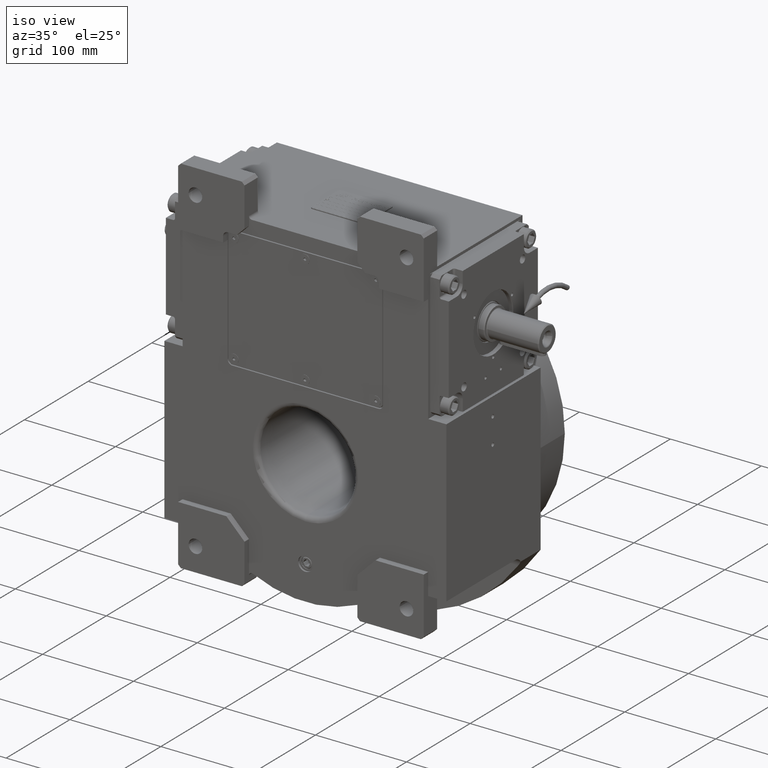
[diagram: clean part render]
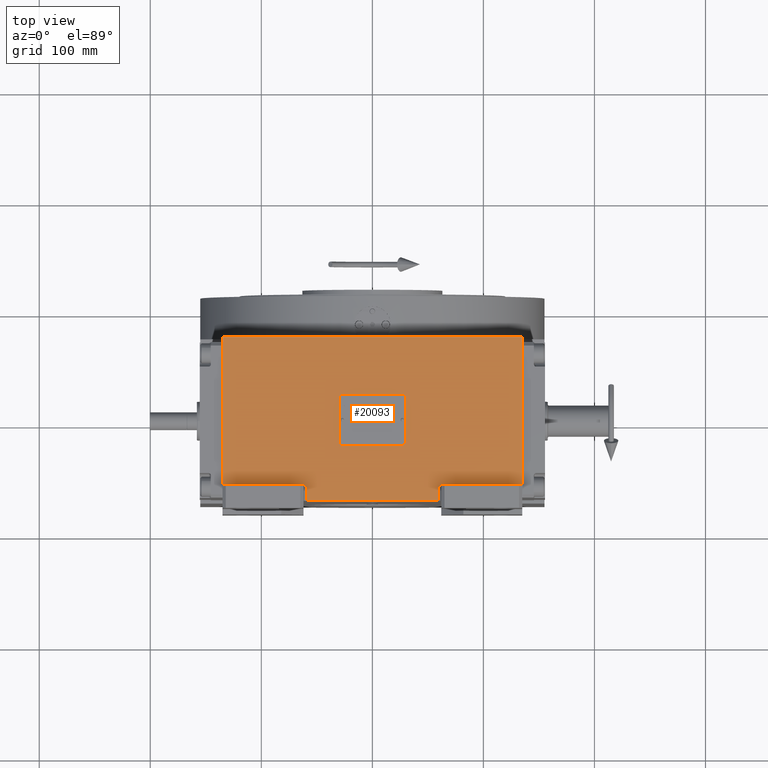
[diagram: tour spotlight — one face highlighted and labeled with its STEP entity id]
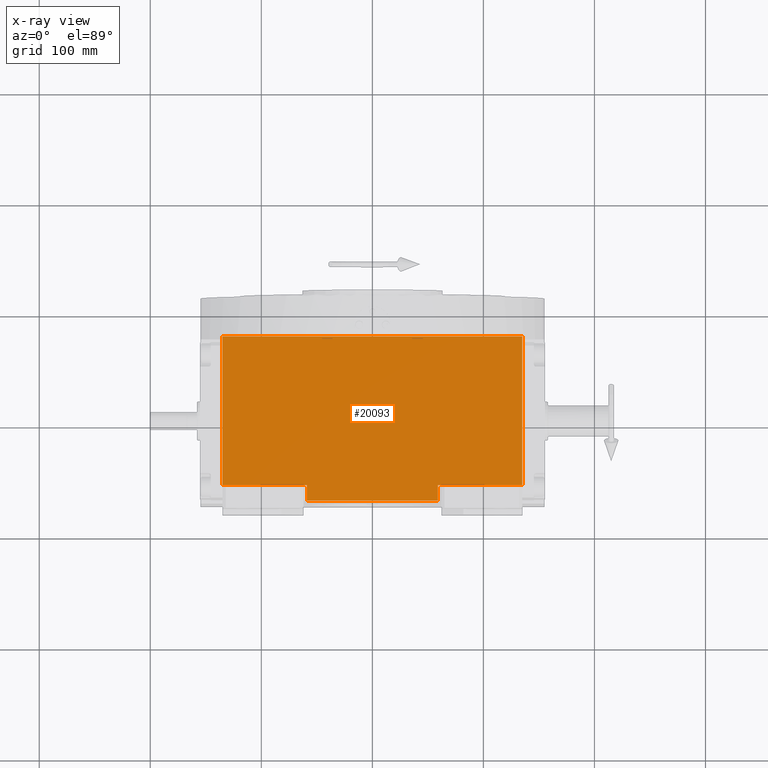
[diagram: x-ray of the same camera — body ghosted, this tour face saturated]
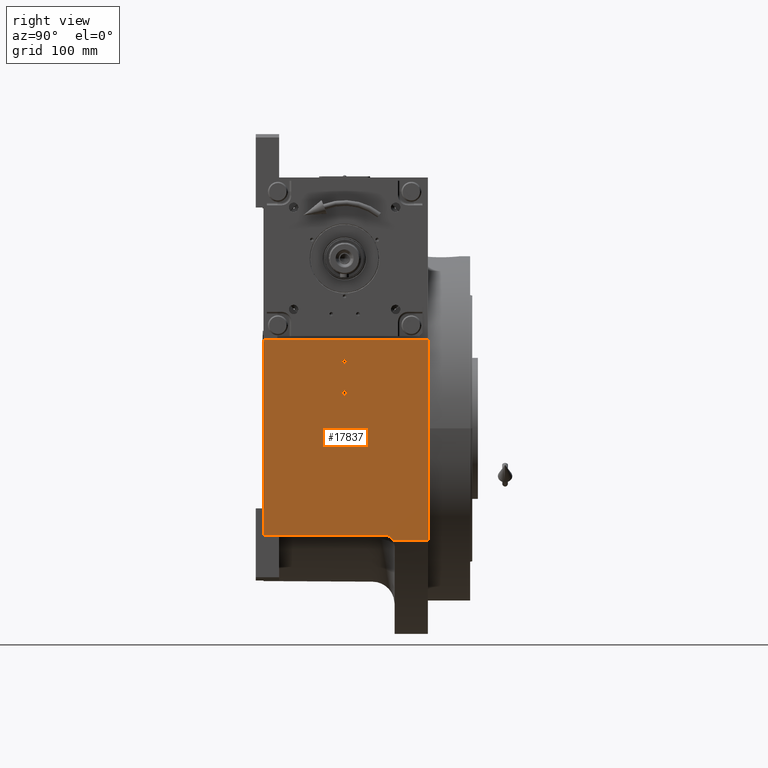
[diagram: tour spotlight — one face highlighted and labeled with its STEP entity id]
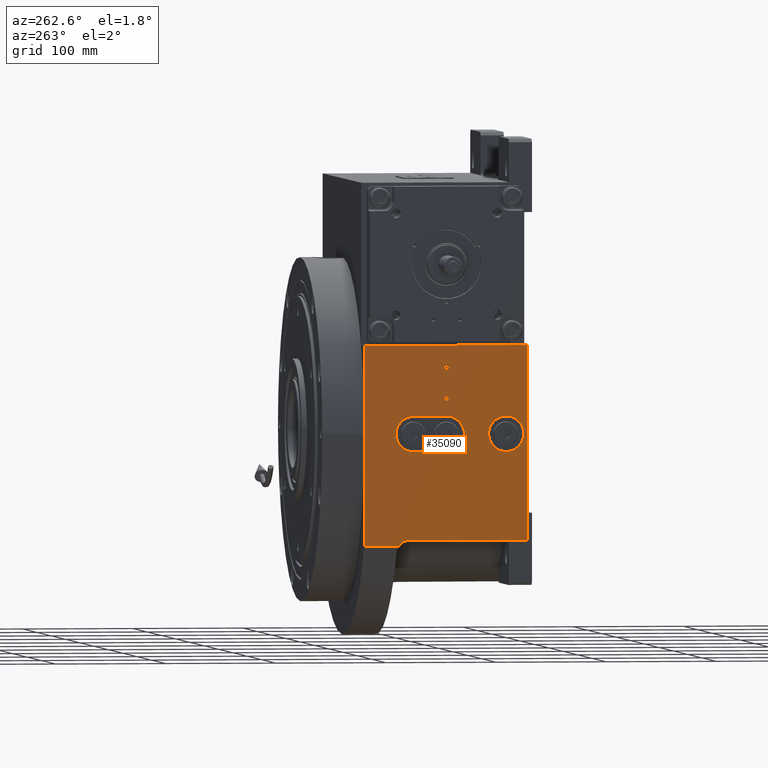
[diagram: tour spotlight — one face highlighted and labeled with its STEP entity id]
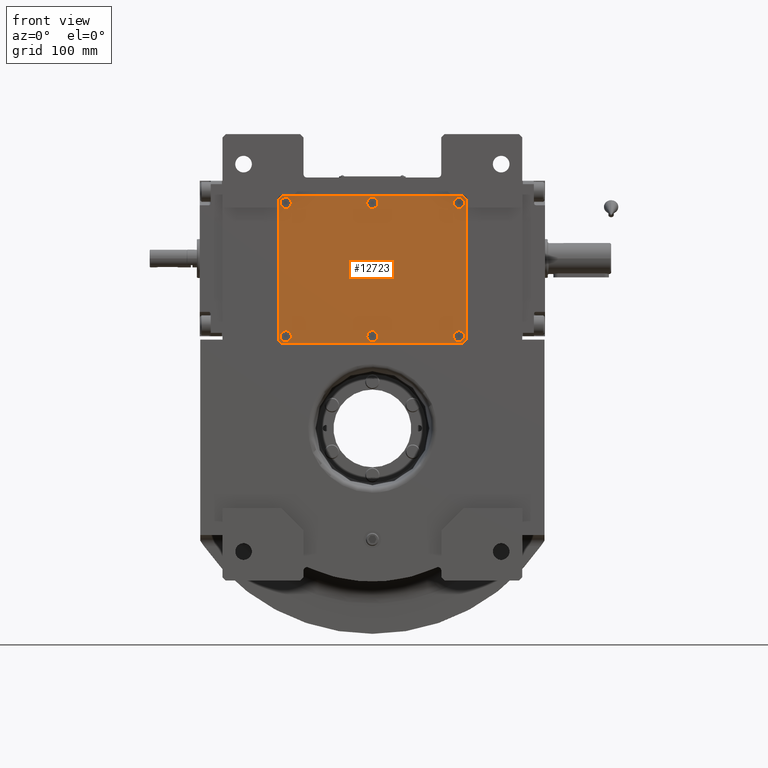
[diagram: tour spotlight — one face highlighted and labeled with its STEP entity id]
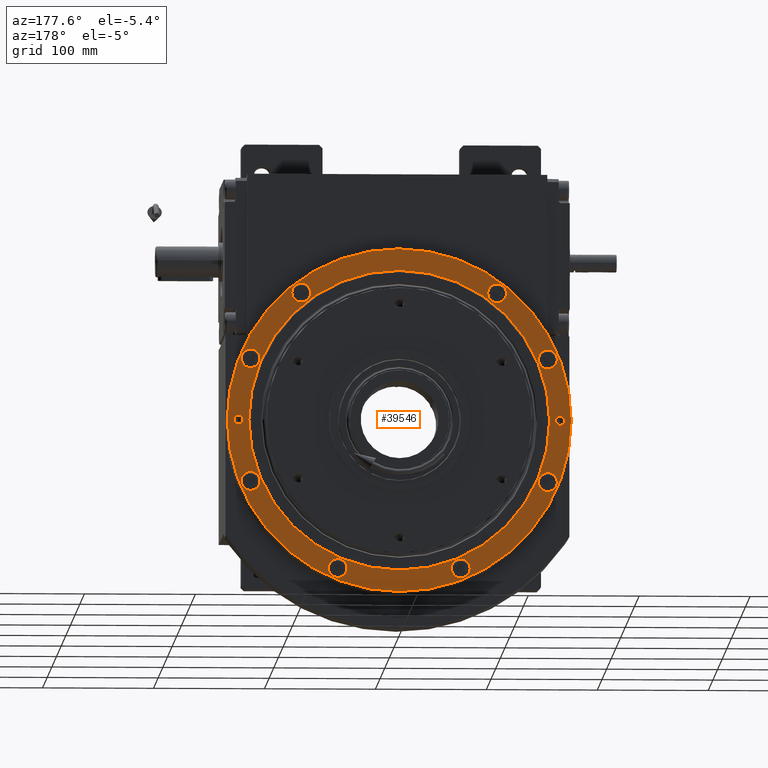
[diagram: tour spotlight — one face highlighted and labeled with its STEP entity id]
A machine part: a face-by-face anatomy tour. The part has 1990 B-rep faces; the first image is the clean iso view, then the 5 largest visible faces are spotlighted one at a time (largest first), each with its STEP entity span.

Face 1 — top view, entity #20093. An x-ray twin of the same camera follows (body ghosted, this face saturated) — the face is partly hidden behind the body. In plain terms, the highlighted planar face has unit normal (0, 0, 1).
Definition (entity closure, byte-faithful):
#237 = EDGE_CURVE ( 'NONE', #32451, #61965, #27734, .T. ) ;
#1520 = EDGE_CURVE ( 'NONE', #20272, #61965, #25677, .T. ) ;
#2755 = CARTESIAN_POINT ( 'NONE',  ( 59.00000000000000000, -73.00000000000000000, 226.0000000000000000 ) ) ;
#3120 = DIRECTION ( 'NONE',  ( 1.000000000000000000, 0.000000000000000000, 0.000000000000000000 ) ) ;
#3874 = DIRECTION ( 'NONE',  ( 0.000000000000000000, 1.000000000000000000, 0.000000000000000000 ) ) ;
#4413 = DIRECTION ( 'NONE',  ( 0.000000000000000000, 1.000000000000000000, 0.000000000000000000 ) ) ;
#4605 = CARTESIAN_POINT ( 'NONE',  ( -135.0000000000000000, -59.00000000000000000, 226.0000000000000000 ) ) ;
#5501 = EDGE_LOOP ( 'NONE', ( #52923, #34366, #50637, #41765, #45124, #67978, #63851, #13870 ) ) ;
#7724 = LINE ( 'NONE', #13332, #67166 ) ;
#8204 = VERTEX_POINT ( 'NONE', #18324 ) ;
#8642 = EDGE_CURVE ( 'NONE', #69188, #32451, #7724, .T. ) ;
#8976 = VERTEX_POINT ( 'NONE', #15755 ) ;
#9851 = CARTESIAN_POINT ( 'NONE',  ( -59.00000000000000000, -73.00000000000000000, 226.0000000000000000 ) ) ;
#11260 = CARTESIAN_POINT ( 'NONE',  ( 135.0000000000000000, -59.00000000000000000, 226.0000000000000000 ) ) ;
#11274 = CARTESIAN_POINT ( 'NONE',  ( -135.0000000000000000, 75.00000000000000000, 226.0000000000000000 ) ) ;
#13080 = VECTOR ( 'NONE', #3874, 1000.000000000000000 ) ;
#13332 = CARTESIAN_POINT ( 'NONE',  ( 59.00000000000000000, -59.00000000000000000, 226.0000000000000000 ) ) ;
#13870 = ORIENTED_EDGE ( 'NONE', *, *, #56265, .F. ) ;
#14137 = VERTEX_POINT ( 'NONE', #4605 ) ;
#15071 = LINE ( 'NONE', #19265, #23455 ) ;
#15755 = CARTESIAN_POINT ( 'NONE',  ( -59.00000000000000000, -73.00000000000000000, 226.0000000000000000 ) ) ;
#15758 = EDGE_CURVE ( 'NONE', #14137, #8204, #47361, .T. ) ;
#16324 = EDGE_CURVE ( 'NONE', #8976, #48325, #60978, .T. ) ;
#16464 = CARTESIAN_POINT ( 'NONE',  ( -135.0000000000000000, -59.00000000000000000, 226.0000000000000000 ) ) ;
#17224 = DIRECTION ( 'NONE',  ( 0.000000000000000000, 1.000000000000000000, 0.000000000000000000 ) ) ;
#18324 = CARTESIAN_POINT ( 'NONE',  ( -59.00000000000000000, -59.00000000000000000, 226.0000000000000000 ) ) ;
#19265 = CARTESIAN_POINT ( 'NONE',  ( 59.00000000000000000, -59.00000000000000000, 226.0000000000000000 ) ) ;
#19436 = FACE_OUTER_BOUND ( 'NONE', #5501, .T. ) ;
#19727 = EDGE_CURVE ( 'NONE', #14137, #20272, #25828, .T. ) ;
#20093 = ADVANCED_FACE ( 'NONE', ( #19436 ), #41549, .T. ) ;
#20272 = VERTEX_POINT ( 'NONE', #27118 ) ;
#20317 = DIRECTION ( 'NONE',  ( 0.000000000000000000, -1.000000000000000000, 0.000000000000000000 ) ) ;
#23051 = CARTESIAN_POINT ( 'NONE',  ( -59.00000000000000000, -73.00000000000000000, 226.0000000000000000 ) ) ;
#23455 = VECTOR ( 'NONE', #20317, 1000.000000000000000 ) ;
#25677 = LINE ( 'NONE', #11274, #65604 ) ;
#25828 = LINE ( 'NONE', #37062, #40739 ) ;
#26102 = CARTESIAN_POINT ( 'NONE',  ( 135.0000000000000000, 75.00000000000000000, 226.0000000000000000 ) ) ;
#27118 = CARTESIAN_POINT ( 'NONE',  ( -135.0000000000000000, 75.00000000000000000, 226.0000000000000000 ) ) ;
#27734 = LINE ( 'NONE', #11260, #68955 ) ;
#30169 = VECTOR ( 'NONE', #49351, 1000.000000000000000 ) ;
#32363 = VECTOR ( 'NONE', #37188, 1000.000000000000000 ) ;
#32451 = VERTEX_POINT ( 'NONE', #35497 ) ;
#34366 = ORIENTED_EDGE ( 'NONE', *, *, #60548, .F. ) ;
#35497 = CARTESIAN_POINT ( 'NONE',  ( 135.0000000000000000, -59.00000000000000000, 226.0000000000000000 ) ) ;
#36186 = LINE ( 'NONE', #9851, #13080 ) ;
#36300 = CARTESIAN_POINT ( 'NONE',  ( -135.0000000000000000, -73.00000000000000000, 226.0000000000000000 ) ) ;
#37062 = CARTESIAN_POINT ( 'NONE',  ( -135.0000000000000000, -59.00000000000000000, 226.0000000000000000 ) ) ;
#37188 = DIRECTION ( 'NONE',  ( 1.000000000000000000, 0.000000000000000000, 0.000000000000000000 ) ) ;
#40739 = VECTOR ( 'NONE', #4413, 1000.000000000000000 ) ;
#40861 = DIRECTION ( 'NONE',  ( 1.000000000000000000, 0.000000000000000000, 0.000000000000000000 ) ) ;
#41549 = PLANE ( 'NONE',  #67690 ) ;
#41765 = ORIENTED_EDGE ( 'NONE', *, *, #237, .T. ) ;
#43895 = DIRECTION ( 'NONE',  ( 1.000000000000000000, 0.000000000000000000, 0.000000000000000000 ) ) ;
#45124 = ORIENTED_EDGE ( 'NONE', *, *, #1520, .F. ) ;
#47361 = LINE ( 'NONE', #16464, #32363 ) ;
#48325 = VERTEX_POINT ( 'NONE', #2755 ) ;
#49351 = DIRECTION ( 'NONE',  ( 1.000000000000000000, 0.000000000000000000, 0.000000000000000000 ) ) ;
#50637 = ORIENTED_EDGE ( 'NONE', *, *, #8642, .T. ) ;
#51223 = CARTESIAN_POINT ( 'NONE',  ( 59.00000000000000000, -59.00000000000000000, 226.0000000000000000 ) ) ;
#52923 = ORIENTED_EDGE ( 'NONE', *, *, #16324, .T. ) ;
#56265 = EDGE_CURVE ( 'NONE', #8976, #8204, #36186, .T. ) ;
#60548 = EDGE_CURVE ( 'NONE', #69188, #48325, #15071, .T. ) ;
#60978 = LINE ( 'NONE', #23051, #30169 ) ;
#61965 = VERTEX_POINT ( 'NONE', #26102 ) ;
#63002 = DIRECTION ( 'NONE',  ( 0.000000000000000000, 0.000000000000000000, 1.000000000000000000 ) ) ;
#63851 = ORIENTED_EDGE ( 'NONE', *, *, #15758, .T. ) ;
#65604 = VECTOR ( 'NONE', #43895, 1000.000000000000000 ) ;
#67166 = VECTOR ( 'NONE', #3120, 1000.000000000000000 ) ;
#67690 = AXIS2_PLACEMENT_3D ( 'NONE', #36300, #63002, #40861 ) ;
#67978 = ORIENTED_EDGE ( 'NONE', *, *, #19727, .F. ) ;
#68955 = VECTOR ( 'NONE', #17224, 1000.000000000000000 ) ;
#69188 = VERTEX_POINT ( 'NONE', #51223 ) ;

Face 2 — right view, entity #17837. In plain terms, the highlighted planar face has unit normal (1, 0, 0).
Definition (entity closure, byte-faithful):
#1789 = EDGE_CURVE ( 'NONE', #45702, #16710, #60780, .T. ) ;
#1896 = CARTESIAN_POINT ( 'NONE',  ( 155.0000000000000000, 75.00000000000000000, -100.9950493836208096 ) ) ;
#2109 = CARTESIAN_POINT ( 'NONE',  ( 155.0000000000000000, 35.00000000000000000, -96.00000000000000000 ) ) ;
#2156 = DIRECTION ( 'NONE',  ( 0.000000000000000000, -1.387778780781446464E-15, 1.000000000000000000 ) ) ;
#2791 = CARTESIAN_POINT ( 'NONE',  ( 155.0000000000000000, -73.00000000000000000, 80.00000000000000000 ) ) ;
#2909 = EDGE_LOOP ( 'NONE', ( #14772, #58527 ) ) ;
#3339 = CARTESIAN_POINT ( 'NONE',  ( 155.0000000000000000, -73.00000000000000000, 80.00000000000000000 ) ) ;
#3472 = DIRECTION ( 'NONE',  ( -1.000000000000000000, 0.000000000000000000, 0.000000000000000000 ) ) ;
#4808 = VECTOR ( 'NONE', #57319, 1000.000000000000000 ) ;
#7306 = LINE ( 'NONE', #48711, #66476 ) ;
#7522 = DIRECTION ( 'NONE',  ( 1.000000000000000000, 0.000000000000000000, 0.000000000000000000 ) ) ;
#8136 = CIRCLE ( 'NONE', #58609, 2.100000000000000089 ) ;
#12214 = DIRECTION ( 'NONE',  ( 0.000000000000000000, 1.000000000000000000, -9.068074731744140484E-16 ) ) ;
#12354 = LINE ( 'NONE', #61506, #33257 ) ;
#13169 = ORIENTED_EDGE ( 'NONE', *, *, #56494, .T. ) ;
#13526 = CARTESIAN_POINT ( 'NONE',  ( 155.0000000000000000, -2.100000000000000089, 60.00000000000000000 ) ) ;
#13552 = FACE_BOUND ( 'NONE', #2909, .T. ) ;
#14772 = ORIENTED_EDGE ( 'NONE', *, *, #58431, .F. ) ;
#16710 = VERTEX_POINT ( 'NONE', #37712 ) ;
#16839 = LINE ( 'NONE', #53357, #54582 ) ;
#17837 = ADVANCED_FACE ( 'NONE', ( #41615, #13552, #19146 ), #41252, .T. ) ;
#18364 = CARTESIAN_POINT ( 'NONE',  ( 155.0000000000000000, 75.00000000000000000, 80.00000000000000000 ) ) ;
#19146 = FACE_OUTER_BOUND ( 'NONE', #54163, .T. ) ;
#19823 = VERTEX_POINT ( 'NONE', #40950 ) ;
#20126 = ORIENTED_EDGE ( 'NONE', *, *, #26889, .F. ) ;
#20723 = EDGE_CURVE ( 'NONE', #53854, #27929, #7306, .T. ) ;
#20999 = CIRCLE ( 'NONE', #26587, 2.100000000000000089 ) ;
#21194 = AXIS2_PLACEMENT_3D ( 'NONE', #51214, #67405, #56859 ) ;
#21734 = VERTEX_POINT ( 'NONE', #43273 ) ;
#22078 = ORIENTED_EDGE ( 'NONE', *, *, #60506, .F. ) ;
#23221 = DIRECTION ( 'NONE',  ( 0.000000000000000000, 1.000000000000000000, 0.000000000000000000 ) ) ;
#24225 = DIRECTION ( 'NONE',  ( 3.229739708000455480E-16, 0.000000000000000000, -1.000000000000000000 ) ) ;
#24682 = EDGE_CURVE ( 'NONE', #32202, #45520, #8136, .T. ) ;
#26587 = AXIS2_PLACEMENT_3D ( 'NONE', #40144, #7522, #61601 ) ;
#26889 = EDGE_CURVE ( 'NONE', #21734, #27929, #67168, .T. ) ;
#27929 = VERTEX_POINT ( 'NONE', #1896 ) ;
#28371 = DIRECTION ( 'NONE',  ( 1.000000000000000000, 0.000000000000000000, 0.000000000000000000 ) ) ;
#29735 = CIRCLE ( 'NONE', #67834, 2.100000000000000089 ) ;
#30767 = AXIS2_PLACEMENT_3D ( 'NONE', #68819, #3472, #2156 ) ;
#31825 = DIRECTION ( 'NONE',  ( 1.000000000000000000, 0.000000000000000000, 0.000000000000000000 ) ) ;
#32202 = VERTEX_POINT ( 'NONE', #13526 ) ;
#33257 = VECTOR ( 'NONE', #23221, 1000.000000000000000 ) ;
#33616 = VERTEX_POINT ( 'NONE', #61183 ) ;
#33849 = AXIS2_PLACEMENT_3D ( 'NONE', #3339, #51441, #67631 ) ;
#35635 = EDGE_CURVE ( 'NONE', #40087, #53854, #67803, .T. ) ;
#37712 = CARTESIAN_POINT ( 'NONE',  ( 155.0000000000000000, -73.00000000000000000, -96.00000000000000000 ) ) ;
#38040 = VECTOR ( 'NONE', #24225, 1000.000000000000000 ) ;
#39808 = ORIENTED_EDGE ( 'NONE', *, *, #68635, .F. ) ;
#40087 = VERTEX_POINT ( 'NONE', #2109 ) ;
#40144 = CARTESIAN_POINT ( 'NONE',  ( 155.0000000000000000, 0.000000000000000000, 60.00000000000000000 ) ) ;
#40950 = CARTESIAN_POINT ( 'NONE',  ( 155.0000000000000000, -2.100000000000000089, 32.00000000000000000 ) ) ;
#41252 = PLANE ( 'NONE',  #33849 ) ;
#41615 = FACE_BOUND ( 'NONE', #51811, .T. ) ;
#43273 = CARTESIAN_POINT ( 'NONE',  ( 155.0000000000000000, 75.00000000000000000, 80.00000000000000000 ) ) ;
#44445 = CARTESIAN_POINT ( 'NONE',  ( 155.0000000000000000, 2.100000000000000089, 60.00000000000000000 ) ) ;
#45520 = VERTEX_POINT ( 'NONE', #44445 ) ;
#45702 = VERTEX_POINT ( 'NONE', #57079 ) ;
#46971 = CIRCLE ( 'NONE', #21194, 2.100000000000000089 ) ;
#48711 = CARTESIAN_POINT ( 'NONE',  ( 155.0000000000000000, 43.65739391084900234, -100.9950493836205965 ) ) ;
#50454 = CARTESIAN_POINT ( 'NONE',  ( 155.0000000000000000, -2.220446049250315053E-16, 60.00000000000000000 ) ) ;
#51214 = CARTESIAN_POINT ( 'NONE',  ( 155.0000000000000000, -2.220446049250315053E-16, 32.00000000000000000 ) ) ;
#51441 = DIRECTION ( 'NONE',  ( 1.000000000000000000, 0.000000000000000000, 3.140606279253960088E-16 ) ) ;
#51692 = ORIENTED_EDGE ( 'NONE', *, *, #1789, .T. ) ;
#51811 = EDGE_LOOP ( 'NONE', ( #39808, #22078 ) ) ;
#53357 = CARTESIAN_POINT ( 'NONE',  ( 155.0000000000000000, -73.00000000000000000, -96.00000000000000000 ) ) ;
#53854 = VERTEX_POINT ( 'NONE', #53939 ) ;
#53887 = DIRECTION ( 'NONE',  ( 0.000000000000000000, 1.000000000000000000, 0.000000000000000000 ) ) ;
#53939 = CARTESIAN_POINT ( 'NONE',  ( 155.0000000000000000, 43.65739391084900234, -100.9950493836208096 ) ) ;
#54163 = EDGE_LOOP ( 'NONE', ( #20126, #69020, #51692, #13169, #65633, #63293 ) ) ;
#54582 = VECTOR ( 'NONE', #59683, 1000.000000000000000 ) ;
#56123 = EDGE_CURVE ( 'NONE', #45702, #21734, #12354, .T. ) ;
#56494 = EDGE_CURVE ( 'NONE', #16710, #40087, #16839, .T. ) ;
#56859 = DIRECTION ( 'NONE',  ( 0.000000000000000000, -1.000000000000000000, 3.304235192336775117E-15 ) ) ;
#57079 = CARTESIAN_POINT ( 'NONE',  ( 155.0000000000000000, -73.00000000000000000, 80.00000000000000000 ) ) ;
#57319 = DIRECTION ( 'NONE',  ( 3.140606279253960088E-16, 0.000000000000000000, -1.000000000000000000 ) ) ;
#58431 = EDGE_CURVE ( 'NONE', #45520, #32202, #20999, .T. ) ;
#58498 = CARTESIAN_POINT ( 'NONE',  ( 155.0000000000000000, 2.220446049250315053E-16, 32.00000000000000000 ) ) ;
#58527 = ORIENTED_EDGE ( 'NONE', *, *, #24682, .F. ) ;
#58609 = AXIS2_PLACEMENT_3D ( 'NONE', #50454, #28371, #66658 ) ;
#59683 = DIRECTION ( 'NONE',  ( 0.000000000000000000, 1.000000000000000000, 0.000000000000000000 ) ) ;
#60506 = EDGE_CURVE ( 'NONE', #19823, #33616, #46971, .T. ) ;
#60780 = LINE ( 'NONE', #2791, #38040 ) ;
#61183 = CARTESIAN_POINT ( 'NONE',  ( 155.0000000000000000, 2.100000000000000089, 32.00000000000000000 ) ) ;
#61506 = CARTESIAN_POINT ( 'NONE',  ( 155.0000000000000000, -73.00000000000000000, 80.00000000000000000 ) ) ;
#61601 = DIRECTION ( 'NONE',  ( 0.000000000000000000, 1.000000000000000000, 0.000000000000000000 ) ) ;
#63293 = ORIENTED_EDGE ( 'NONE', *, *, #20723, .T. ) ;
#65633 = ORIENTED_EDGE ( 'NONE', *, *, #35635, .T. ) ;
#66476 = VECTOR ( 'NONE', #12214, 1000.000000000000000 ) ;
#66658 = DIRECTION ( 'NONE',  ( 0.000000000000000000, -1.000000000000000000, 0.000000000000000000 ) ) ;
#67168 = LINE ( 'NONE', #18364, #4808 ) ;
#67405 = DIRECTION ( 'NONE',  ( 1.000000000000000000, 0.000000000000000000, 0.000000000000000000 ) ) ;
#67631 = DIRECTION ( 'NONE',  ( 3.140606279253960088E-16, 0.000000000000000000, -1.000000000000000000 ) ) ;
#67803 = CIRCLE ( 'NONE', #30767, 9.999999999999994671 ) ;
#67834 = AXIS2_PLACEMENT_3D ( 'NONE', #58498, #31825, #53887 ) ;
#68635 = EDGE_CURVE ( 'NONE', #33616, #19823, #29735, .T. ) ;
#68819 = CARTESIAN_POINT ( 'NONE',  ( 155.0000000000000000, 35.00000000000000000, -106.0000000000000000 ) ) ;
#69020 = ORIENTED_EDGE ( 'NONE', *, *, #56123, .F. ) ;

Face 3 — auxiliary view, entity #35090. In plain terms, the highlighted planar face has unit normal (-1, 0, 0).
Definition (entity closure, byte-faithful):
#194 = ORIENTED_EDGE ( 'NONE', *, *, #56765, .F. ) ;
#1076 = CARTESIAN_POINT ( 'NONE',  ( -155.0000000000000000, -73.00000000000000000, -96.00000000000000000 ) ) ;
#2601 = CARTESIAN_POINT ( 'NONE',  ( -155.0000000000000000, 43.65739391084900234, -100.9950493836208096 ) ) ;
#2827 = CARTESIAN_POINT ( 'NONE',  ( -155.0000000000000000, 35.00000000000000000, -96.00000000000000000 ) ) ;
#3841 = CIRCLE ( 'NONE', #19532, 9.999999999999994671 ) ;
#4171 = CARTESIAN_POINT ( 'NONE',  ( -155.0000000000000000, 30.00000000000000000, -16.00000000000000000 ) ) ;
#4846 = AXIS2_PLACEMENT_3D ( 'NONE', #40210, #8294, #28660 ) ;
#5523 = CARTESIAN_POINT ( 'NONE',  ( -155.0000000000000000, 30.00000000000000000, -16.00000000000000000 ) ) ;
#5794 = ORIENTED_EDGE ( 'NONE', *, *, #40041, .T. ) ;
#6525 = CIRCLE ( 'NONE', #28958, 16.00000000000000000 ) ;
#6824 = VERTEX_POINT ( 'NONE', #9178 ) ;
#7849 = VECTOR ( 'NONE', #63805, 1000.000000000000000 ) ;
#7925 = DIRECTION ( 'NONE',  ( 0.000000000000000000, 0.000000000000000000, 1.000000000000000000 ) ) ;
#7980 = VECTOR ( 'NONE', #25504, 1000.000000000000000 ) ;
#8044 = CARTESIAN_POINT ( 'NONE',  ( -155.0000000000000000, 2.100000000000000089, 60.00000000000000000 ) ) ;
#8175 = CIRCLE ( 'NONE', #14892, 2.100000000000000089 ) ;
#8294 = DIRECTION ( 'NONE',  ( -1.000000000000000000, 0.000000000000000000, 0.000000000000000000 ) ) ;
#9178 = CARTESIAN_POINT ( 'NONE',  ( -155.0000000000000000, -73.00000000000000000, -96.00000000000000000 ) ) ;
#11142 = CARTESIAN_POINT ( 'NONE',  ( -155.0000000000000000, 0.000000000000000000, 32.00000000000000000 ) ) ;
#11201 = ORIENTED_EDGE ( 'NONE', *, *, #40604, .F. ) ;
#11786 = CARTESIAN_POINT ( 'NONE',  ( -155.0000000000000000, -73.00000000000000000, -100.9950493836205965 ) ) ;
#11958 = VERTEX_POINT ( 'NONE', #38114 ) ;
#12114 = LINE ( 'NONE', #33538, #28990 ) ;
#12116 = CARTESIAN_POINT ( 'NONE',  ( -155.0000000000000000, 30.00000000000000000, -1.776356839400249676E-15 ) ) ;
#12186 = DIRECTION ( 'NONE',  ( 0.000000000000000000, 1.000000000000000000, 0.000000000000000000 ) ) ;
#14375 = DIRECTION ( 'NONE',  ( 0.000000000000000000, -1.000000000000000000, 0.000000000000000000 ) ) ;
#14451 = CARTESIAN_POINT ( 'NONE',  ( -155.0000000000000000, 6.531449595452550110E-16, -16.00000000000000000 ) ) ;
#14647 = CARTESIAN_POINT ( 'NONE',  ( -155.0000000000000000, -73.00000000000000000, 80.00000000000000000 ) ) ;
#14892 = AXIS2_PLACEMENT_3D ( 'NONE', #59626, #32948, #28006 ) ;
#15412 = LINE ( 'NONE', #4171, #49409 ) ;
#15490 = AXIS2_PLACEMENT_3D ( 'NONE', #30772, #68339, #58487 ) ;
#16115 = DIRECTION ( 'NONE',  ( 0.000000000000000000, 0.8657393910849010554, 0.5004950616379194583 ) ) ;
#16267 = EDGE_LOOP ( 'NONE', ( #5794, #19826, #30304, #55776, #29078, #23825 ) ) ;
#16753 = DIRECTION ( 'NONE',  ( 1.000000000000000000, 0.000000000000000000, 0.000000000000000000 ) ) ;
#18066 = DIRECTION ( 'NONE',  ( 0.000000000000000000, 0.000000000000000000, 1.000000000000000000 ) ) ;
#18125 = EDGE_CURVE ( 'NONE', #62294, #46878, #40528, .T. ) ;
#18621 = DIRECTION ( 'NONE',  ( -1.000000000000000000, 0.000000000000000000, 0.000000000000000000 ) ) ;
#18702 = VERTEX_POINT ( 'NONE', #2827 ) ;
#19532 = AXIS2_PLACEMENT_3D ( 'NONE', #26291, #21714, #16115 ) ;
#19826 = ORIENTED_EDGE ( 'NONE', *, *, #37615, .T. ) ;
#20595 = CARTESIAN_POINT ( 'NONE',  ( -155.0000000000000000, 43.65739391084900234, -100.9950493836205965 ) ) ;
#20726 = EDGE_CURVE ( 'NONE', #46878, #62294, #8175, .T. ) ;
#21247 = CARTESIAN_POINT ( 'NONE',  ( -155.0000000000000000, -73.00000000000000000, 80.00000000000000000 ) ) ;
#21304 = ORIENTED_EDGE ( 'NONE', *, *, #58142, .T. ) ;
#21714 = DIRECTION ( 'NONE',  ( 1.000000000000000000, 0.000000000000000000, 0.000000000000000000 ) ) ;
#22661 = FACE_BOUND ( 'NONE', #30380, .T. ) ;
#23207 = DIRECTION ( 'NONE',  ( 0.000000000000000000, 0.000000000000000000, 1.000000000000000000 ) ) ;
#23208 = AXIS2_PLACEMENT_3D ( 'NONE', #35417, #46946, #56839 ) ;
#23553 = LINE ( 'NONE', #1076, #62026 ) ;
#23684 = FACE_BOUND ( 'NONE', #49966, .T. ) ;
#23811 = ORIENTED_EDGE ( 'NONE', *, *, #18125, .T. ) ;
#23825 = ORIENTED_EDGE ( 'NONE', *, *, #49319, .F. ) ;
#25166 = LINE ( 'NONE', #14647, #7980 ) ;
#25504 = DIRECTION ( 'NONE',  ( 0.000000000000000000, 1.000000000000000000, 0.000000000000000000 ) ) ;
#26291 = CARTESIAN_POINT ( 'NONE',  ( -155.0000000000000000, 35.00000000000000000, -106.0000000000000000 ) ) ;
#26533 = LINE ( 'NONE', #20595, #7849 ) ;
#27413 = EDGE_CURVE ( 'NONE', #33507, #57944, #32906, .T. ) ;
#27527 = DIRECTION ( 'NONE',  ( 0.000000000000000000, 1.000000000000000000, 0.000000000000000000 ) ) ;
#28006 = DIRECTION ( 'NONE',  ( 0.000000000000000000, 1.000000000000000000, 0.000000000000000000 ) ) ;
#28660 = DIRECTION ( 'NONE',  ( 0.000000000000000000, -1.000000000000000000, 1.665334536937734071E-16 ) ) ;
#28958 = AXIS2_PLACEMENT_3D ( 'NONE', #12116, #33539, #32488 ) ;
#28990 = VECTOR ( 'NONE', #54941, 1000.000000000000000 ) ;
#29078 = ORIENTED_EDGE ( 'NONE', *, *, #41489, .T. ) ;
#30304 = ORIENTED_EDGE ( 'NONE', *, *, #39285, .F. ) ;
#30380 = EDGE_LOOP ( 'NONE', ( #46584, #21304 ) ) ;
#30410 = EDGE_CURVE ( 'NONE', #63128, #11958, #26533, .T. ) ;
#30576 = VERTEX_POINT ( 'NONE', #33228 ) ;
#30772 = CARTESIAN_POINT ( 'NONE',  ( -155.0000000000000000, 0.000000000000000000, 32.00000000000000000 ) ) ;
#31546 = ORIENTED_EDGE ( 'NONE', *, *, #62840, .F. ) ;
#32488 = DIRECTION ( 'NONE',  ( 0.000000000000000000, -6.505213034913026604E-16, 1.000000000000000000 ) ) ;
#32860 = FACE_BOUND ( 'NONE', #69323, .T. ) ;
#32906 = CIRCLE ( 'NONE', #41849, 16.00000000000000000 ) ;
#32948 = DIRECTION ( 'NONE',  ( 1.000000000000000000, 0.000000000000000000, 0.000000000000000000 ) ) ;
#33078 = CARTESIAN_POINT ( 'NONE',  ( -155.0000000000000000, 75.00000000000000000, 80.00000000000000000 ) ) ;
#33228 = CARTESIAN_POINT ( 'NONE',  ( -155.0000000000000000, -2.100000000000000089, 32.00000000000000000 ) ) ;
#33507 = VERTEX_POINT ( 'NONE', #59085 ) ;
#33538 = CARTESIAN_POINT ( 'NONE',  ( -155.0000000000000000, -73.00000000000000000, -96.00000000000000000 ) ) ;
#33539 = DIRECTION ( 'NONE',  ( -1.000000000000000000, 0.000000000000000000, 0.000000000000000000 ) ) ;
#34268 = LINE ( 'NONE', #55686, #47333 ) ;
#35090 = ADVANCED_FACE ( 'NONE', ( #32860, #66209, #22661, #23684, #44057 ), #38462, .T. ) ;
#35417 = CARTESIAN_POINT ( 'NONE',  ( -155.0000000000000000, 2.664535259100374514E-15, 0.000000000000000000 ) ) ;
#37612 = VERTEX_POINT ( 'NONE', #62766 ) ;
#37615 = EDGE_CURVE ( 'NONE', #58038, #39966, #25166, .T. ) ;
#38114 = CARTESIAN_POINT ( 'NONE',  ( -155.0000000000000000, 75.00000000000000000, -100.9950493836208096 ) ) ;
#38462 = PLANE ( 'NONE',  #65513 ) ;
#39285 = EDGE_CURVE ( 'NONE', #11958, #39966, #34268, .T. ) ;
#39447 = DIRECTION ( 'NONE',  ( 1.000000000000000000, 0.000000000000000000, 0.000000000000000000 ) ) ;
#39635 = ORIENTED_EDGE ( 'NONE', *, *, #59461, .F. ) ;
#39966 = VERTEX_POINT ( 'NONE', #33078 ) ;
#40041 = EDGE_CURVE ( 'NONE', #6824, #58038, #23553, .T. ) ;
#40080 = CARTESIAN_POINT ( 'NONE',  ( -155.0000000000000000, -2.100000000000000089, 60.00000000000000000 ) ) ;
#40210 = CARTESIAN_POINT ( 'NONE',  ( -155.0000000000000000, -54.00000000000000000, -2.664535259100374514E-15 ) ) ;
#40528 = CIRCLE ( 'NONE', #58506, 2.100000000000000089 ) ;
#40599 = AXIS2_PLACEMENT_3D ( 'NONE', #11142, #16753, #12186 ) ;
#40604 = EDGE_CURVE ( 'NONE', #57944, #33507, #54165, .T. ) ;
#41324 = VERTEX_POINT ( 'NONE', #56193 ) ;
#41489 = EDGE_CURVE ( 'NONE', #63128, #18702, #3841, .T. ) ;
#41849 = AXIS2_PLACEMENT_3D ( 'NONE', #66760, #18621, #50205 ) ;
#42222 = VECTOR ( 'NONE', #27527, 1000.000000000000000 ) ;
#44015 = CARTESIAN_POINT ( 'NONE',  ( -155.0000000000000000, 0.000000000000000000, 16.00000000000000000 ) ) ;
#44057 = FACE_OUTER_BOUND ( 'NONE', #16267, .T. ) ;
#44695 = CARTESIAN_POINT ( 'NONE',  ( -155.0000000000000000, 0.000000000000000000, 60.00000000000000000 ) ) ;
#46020 = EDGE_CURVE ( 'NONE', #37612, #56387, #60543, .T. ) ;
#46584 = ORIENTED_EDGE ( 'NONE', *, *, #49826, .T. ) ;
#46878 = VERTEX_POINT ( 'NONE', #8044 ) ;
#46946 = DIRECTION ( 'NONE',  ( -1.000000000000000000, 0.000000000000000000, 0.000000000000000000 ) ) ;
#47333 = VECTOR ( 'NONE', #7925, 1000.000000000000000 ) ;
#49319 = EDGE_CURVE ( 'NONE', #6824, #18702, #12114, .T. ) ;
#49409 = VECTOR ( 'NONE', #14375, 1000.000000000000000 ) ;
#49426 = EDGE_LOOP ( 'NONE', ( #11201, #56519 ) ) ;
#49826 = EDGE_CURVE ( 'NONE', #41324, #30576, #58576, .T. ) ;
#49966 = EDGE_LOOP ( 'NONE', ( #65864, #23811 ) ) ;
#50205 = DIRECTION ( 'NONE',  ( 0.000000000000000000, 1.000000000000000000, -5.551115123125779004E-17 ) ) ;
#50823 = VERTEX_POINT ( 'NONE', #5523 ) ;
#53467 = CIRCLE ( 'NONE', #23208, 16.00000000000000000 ) ;
#54165 = CIRCLE ( 'NONE', #4846, 16.00000000000000711 ) ;
#54707 = ORIENTED_EDGE ( 'NONE', *, *, #46020, .F. ) ;
#54941 = DIRECTION ( 'NONE',  ( 0.000000000000000000, 1.000000000000000000, 0.000000000000000000 ) ) ;
#55624 = DIRECTION ( 'NONE',  ( 0.000000000000000000, -1.000000000000000000, 0.000000000000000000 ) ) ;
#55686 = CARTESIAN_POINT ( 'NONE',  ( -155.0000000000000000, 75.00000000000000000, -100.9950493836208096 ) ) ;
#55776 = ORIENTED_EDGE ( 'NONE', *, *, #30410, .F. ) ;
#56193 = CARTESIAN_POINT ( 'NONE',  ( -155.0000000000000000, 2.100000000000000089, 32.00000000000000000 ) ) ;
#56387 = VERTEX_POINT ( 'NONE', #64963 ) ;
#56519 = ORIENTED_EDGE ( 'NONE', *, *, #27413, .F. ) ;
#56765 = EDGE_CURVE ( 'NONE', #62380, #37612, #53467, .T. ) ;
#56839 = DIRECTION ( 'NONE',  ( 0.000000000000000000, -1.665334536937734811E-16, -1.000000000000000000 ) ) ;
#57944 = VERTEX_POINT ( 'NONE', #61693 ) ;
#58038 = VERTEX_POINT ( 'NONE', #21247 ) ;
#58142 = EDGE_CURVE ( 'NONE', #30576, #41324, #65835, .T. ) ;
#58487 = DIRECTION ( 'NONE',  ( 0.000000000000000000, -1.000000000000000000, 0.000000000000000000 ) ) ;
#58506 = AXIS2_PLACEMENT_3D ( 'NONE', #44695, #39447, #55624 ) ;
#58576 = CIRCLE ( 'NONE', #40599, 2.100000000000000089 ) ;
#59085 = CARTESIAN_POINT ( 'NONE',  ( -155.0000000000000000, -38.00000000000000000, 0.000000000000000000 ) ) ;
#59461 = EDGE_CURVE ( 'NONE', #56387, #50823, #6525, .T. ) ;
#59626 = CARTESIAN_POINT ( 'NONE',  ( -155.0000000000000000, 0.000000000000000000, 60.00000000000000000 ) ) ;
#60543 = LINE ( 'NONE', #44015, #42222 ) ;
#60935 = DIRECTION ( 'NONE',  ( -1.000000000000000000, 0.000000000000000000, 0.000000000000000000 ) ) ;
#61693 = CARTESIAN_POINT ( 'NONE',  ( -155.0000000000000000, -70.00000000000000000, -1.715330826321744984E-15 ) ) ;
#62026 = VECTOR ( 'NONE', #23207, 1000.000000000000000 ) ;
#62294 = VERTEX_POINT ( 'NONE', #40080 ) ;
#62380 = VERTEX_POINT ( 'NONE', #14451 ) ;
#62766 = CARTESIAN_POINT ( 'NONE',  ( -155.0000000000000000, 0.000000000000000000, 16.00000000000000000 ) ) ;
#62840 = EDGE_CURVE ( 'NONE', #50823, #62380, #15412, .T. ) ;
#63128 = VERTEX_POINT ( 'NONE', #2601 ) ;
#63805 = DIRECTION ( 'NONE',  ( 0.000000000000000000, 1.000000000000000000, 0.000000000000000000 ) ) ;
#64963 = CARTESIAN_POINT ( 'NONE',  ( -155.0000000000000000, 30.00000000000000000, 16.00000000000000000 ) ) ;
#65513 = AXIS2_PLACEMENT_3D ( 'NONE', #11786, #60935, #18066 ) ;
#65835 = CIRCLE ( 'NONE', #15490, 2.100000000000000089 ) ;
#65864 = ORIENTED_EDGE ( 'NONE', *, *, #20726, .T. ) ;
#66209 = FACE_BOUND ( 'NONE', #49426, .T. ) ;
#66760 = CARTESIAN_POINT ( 'NONE',  ( -155.0000000000000000, -54.00000000000000000, 8.881784197001250351E-16 ) ) ;
#68339 = DIRECTION ( 'NONE',  ( 1.000000000000000000, 0.000000000000000000, 0.000000000000000000 ) ) ;
#69323 = EDGE_LOOP ( 'NONE', ( #54707, #194, #31546, #39635 ) ) ;

Face 4 — front view, entity #12723. In plain terms, the highlighted planar face has unit normal (0, -1, 0).
Definition (entity closure, byte-faithful):
#969 = AXIS2_PLACEMENT_3D ( 'NONE', #32015, #10237, #9562 ) ;
#1297 = EDGE_CURVE ( 'NONE', #64270, #31177, #5980, .T. ) ;
#1367 = DIRECTION ( 'NONE',  ( 0.000000000000000000, 0.000000000000000000, 1.000000000000000000 ) ) ;
#2961 = DIRECTION ( 'NONE',  ( 0.000000000000000000, 0.000000000000000000, 1.000000000000000000 ) ) ;
#3542 = CIRCLE ( 'NONE', #32747, 4.500000000000003553 ) ;
#3870 = EDGE_CURVE ( 'NONE', #53428, #59066, #25494, .T. ) ;
#4321 = CIRCLE ( 'NONE', #54802, 4.500000000000003553 ) ;
#4577 = DIRECTION ( 'NONE',  ( -1.000000000000000000, 0.000000000000000000, 0.000000000000000000 ) ) ;
#4791 = EDGE_LOOP ( 'NONE', ( #40986, #47949 ) ) ;
#5208 = CARTESIAN_POINT ( 'NONE',  ( 84.50000000000000000, -63.50000000000000000, 3.000000000000002665 ) ) ;
#5370 = VERTEX_POINT ( 'NONE', #30324 ) ;
#5413 = DIRECTION ( 'NONE',  ( 0.000000000000000000, 0.000000000000000000, 1.000000000000000000 ) ) ;
#5669 = AXIS2_PLACEMENT_3D ( 'NONE', #49504, #6710, #22139 ) ;
#5839 = EDGE_LOOP ( 'NONE', ( #14724, #17851 ) ) ;
#5980 = CIRCLE ( 'NONE', #37342, 4.500000000000000000 ) ;
#6137 = CARTESIAN_POINT ( 'NONE',  ( -78.00000000000000000, 60.00000000000000000, 3.000000000000002665 ) ) ;
#6295 = CARTESIAN_POINT ( 'NONE',  ( -81.50000000000000000, 66.50000000000000000, 3.000000000000002665 ) ) ;
#6710 = DIRECTION ( 'NONE',  ( 0.000000000000000000, 0.000000000000000000, 1.000000000000000000 ) ) ;
#8223 = CARTESIAN_POINT ( 'NONE',  ( -84.50000000000000000, 63.50000000000000000, 3.000000000000002665 ) ) ;
#8515 = DIRECTION ( 'NONE',  ( 1.000000000000000000, 0.000000000000000000, 0.000000000000000000 ) ) ;
#8553 = EDGE_CURVE ( 'NONE', #25015, #39673, #64642, .T. ) ;
#8961 = DIRECTION ( 'NONE',  ( 1.000000000000000000, 0.000000000000000000, 0.000000000000000000 ) ) ;
#9198 = FACE_BOUND ( 'NONE', #5839, .T. ) ;
#9411 = ORIENTED_EDGE ( 'NONE', *, *, #48094, .F. ) ;
#9562 = DIRECTION ( 'NONE',  ( 1.000000000000000000, 0.000000000000000000, 0.000000000000000000 ) ) ;
#9721 = EDGE_CURVE ( 'NONE', #68105, #28398, #4321, .T. ) ;
#9771 = AXIS2_PLACEMENT_3D ( 'NONE', #6137, #22970, #59495 ) ;
#10230 = DIRECTION ( 'NONE',  ( -1.000000000000000000, 0.000000000000000000, 0.000000000000000000 ) ) ;
#10237 = DIRECTION ( 'NONE',  ( 0.000000000000000000, 0.000000000000000000, 1.000000000000000000 ) ) ;
#10509 = ORIENTED_EDGE ( 'NONE', *, *, #15907, .T. ) ;
#10751 = EDGE_CURVE ( 'NONE', #5370, #25015, #19420, .T. ) ;
#10892 = CARTESIAN_POINT ( 'NONE',  ( 82.50000000000000000, 60.00000000000000000, 3.000000000000002665 ) ) ;
#11079 = VECTOR ( 'NONE', #49130, 1000.000000000000114 ) ;
#11589 = DIRECTION ( 'NONE',  ( 1.000000000000000000, 0.000000000000000000, 0.000000000000000000 ) ) ;
#12036 = AXIS2_PLACEMENT_3D ( 'NONE', #19418, #68245, #40846 ) ;
#12220 = AXIS2_PLACEMENT_3D ( 'NONE', #54759, #1367, #11589 ) ;
#12439 = CARTESIAN_POINT ( 'NONE',  ( 0.000000000000000000, -60.00000000000000000, 3.000000000000002665 ) ) ;
#12699 = DIRECTION ( 'NONE',  ( -0.7071067811865474617, 0.7071067811865474617, 0.000000000000000000 ) ) ;
#12723 = ADVANCED_FACE ( 'NONE', ( #41471, #21099, #26011, #15832, #9198, #62921, #14808 ), #36220, .T. ) ;
#12967 = CARTESIAN_POINT ( 'NONE',  ( 78.00000000000000000, 60.00000000000000000, 3.000000000000002665 ) ) ;
#13103 = CIRCLE ( 'NONE', #9771, 4.500000000000003553 ) ;
#13878 = CARTESIAN_POINT ( 'NONE',  ( -81.50000000000000000, -66.50000000000000000, 3.000000000000002665 ) ) ;
#14084 = EDGE_CURVE ( 'NONE', #59066, #53428, #18926, .T. ) ;
#14219 = LINE ( 'NONE', #13878, #63151 ) ;
#14724 = ORIENTED_EDGE ( 'NONE', *, *, #57192, .F. ) ;
#14762 = AXIS2_PLACEMENT_3D ( 'NONE', #65182, #23350, #44742 ) ;
#14767 = VECTOR ( 'NONE', #4577, 1000.000000000000000 ) ;
#14797 = LINE ( 'NONE', #53039, #40173 ) ;
#14808 = FACE_BOUND ( 'NONE', #60108, .T. ) ;
#15465 = CARTESIAN_POINT ( 'NONE',  ( -82.50000000000000000, -60.00000000000000000, 3.000000000000002665 ) ) ;
#15832 = FACE_BOUND ( 'NONE', #50214, .T. ) ;
#15907 = EDGE_CURVE ( 'NONE', #54980, #5370, #22426, .T. ) ;
#16083 = CARTESIAN_POINT ( 'NONE',  ( 73.50000000000000000, 60.00000000000000000, 3.000000000000002665 ) ) ;
#17284 = ORIENTED_EDGE ( 'NONE', *, *, #60174, .T. ) ;
#17851 = ORIENTED_EDGE ( 'NONE', *, *, #63620, .F. ) ;
#18573 = EDGE_CURVE ( 'NONE', #57602, #41438, #66084, .T. ) ;
#18585 = CARTESIAN_POINT ( 'NONE',  ( -73.50000000000000000, 60.00000000000000000, 3.000000000000002665 ) ) ;
#18926 = CIRCLE ( 'NONE', #969, 4.500000000000000000 ) ;
#18966 = VERTEX_POINT ( 'NONE', #26328 ) ;
#19259 = CARTESIAN_POINT ( 'NONE',  ( -82.50000000000000000, 60.00000000000000000, 3.000000000000002665 ) ) ;
#19418 = CARTESIAN_POINT ( 'NONE',  ( 78.00000000000000000, -60.00000000000000000, 3.000000000000002665 ) ) ;
#19420 = LINE ( 'NONE', #8223, #26831 ) ;
#19741 = VECTOR ( 'NONE', #21924, 1000.000000000000000 ) ;
#20467 = VERTEX_POINT ( 'NONE', #62486 ) ;
#21099 = FACE_BOUND ( 'NONE', #25980, .T. ) ;
#21924 = DIRECTION ( 'NONE',  ( 0.000000000000000000, 1.000000000000000000, 0.000000000000000000 ) ) ;
#22139 = DIRECTION ( 'NONE',  ( -1.000000000000000000, 0.000000000000000000, 0.000000000000000000 ) ) ;
#22362 = ORIENTED_EDGE ( 'NONE', *, *, #26612, .T. ) ;
#22426 = LINE ( 'NONE', #6295, #26881 ) ;
#22787 = CARTESIAN_POINT ( 'NONE',  ( -4.500000000000000000, -60.00000000000000000, 3.000000000000002665 ) ) ;
#22806 = CARTESIAN_POINT ( 'NONE',  ( 84.50000000000000000, 63.50000000000000000, 3.000000000000002665 ) ) ;
#22875 = CARTESIAN_POINT ( 'NONE',  ( -73.50000000000000000, -60.00000000000000000, 3.000000000000002665 ) ) ;
#22952 = CARTESIAN_POINT ( 'NONE',  ( -81.50000000000000000, -66.50000000000000000, 3.000000000000002665 ) ) ;
#22970 = DIRECTION ( 'NONE',  ( 0.000000000000000000, 0.000000000000000000, 1.000000000000000000 ) ) ;
#23350 = DIRECTION ( 'NONE',  ( 0.000000000000000000, 0.000000000000000000, 1.000000000000000000 ) ) ;
#24278 = CIRCLE ( 'NONE', #29900, 4.500000000000003553 ) ;
#24558 = VERTEX_POINT ( 'NONE', #5208 ) ;
#25015 = VERTEX_POINT ( 'NONE', #59909 ) ;
#25494 = CIRCLE ( 'NONE', #47929, 4.500000000000000000 ) ;
#25792 = EDGE_LOOP ( 'NONE', ( #47598, #69341 ) ) ;
#25980 = EDGE_LOOP ( 'NONE', ( #9411, #34773 ) ) ;
#26011 = FACE_BOUND ( 'NONE', #4791, .T. ) ;
#26328 = CARTESIAN_POINT ( 'NONE',  ( 82.50000000000000000, -60.00000000000000000, 3.000000000000002665 ) ) ;
#26612 = EDGE_CURVE ( 'NONE', #39673, #20467, #14219, .T. ) ;
#26831 = VECTOR ( 'NONE', #55282, 1000.000000000000000 ) ;
#26881 = VECTOR ( 'NONE', #43829, 1000.000000000000114 ) ;
#27172 = CARTESIAN_POINT ( 'NONE',  ( 84.50000000000000000, -63.50000000000000000, 3.000000000000002665 ) ) ;
#27728 = CARTESIAN_POINT ( 'NONE',  ( -84.50000000000000000, -63.50000000000000000, 3.000000000000002665 ) ) ;
#28398 = VERTEX_POINT ( 'NONE', #18585 ) ;
#29900 = AXIS2_PLACEMENT_3D ( 'NONE', #53509, #5413, #37027 ) ;
#29925 = CIRCLE ( 'NONE', #55754, 4.500000000000003553 ) ;
#29928 = CARTESIAN_POINT ( 'NONE',  ( -4.500000000000000000, 60.00000000000000000, 3.000000000000002665 ) ) ;
#30324 = CARTESIAN_POINT ( 'NONE',  ( -84.50000000000000000, 63.50000000000000000, 3.000000000000002665 ) ) ;
#30444 = CIRCLE ( 'NONE', #14762, 4.500000000000000000 ) ;
#30975 = CARTESIAN_POINT ( 'NONE',  ( -78.00000000000000000, 60.00000000000000000, 3.000000000000002665 ) ) ;
#31177 = VERTEX_POINT ( 'NONE', #29928 ) ;
#31424 = ORIENTED_EDGE ( 'NONE', *, *, #32655, .T. ) ;
#31459 = CIRCLE ( 'NONE', #5669, 4.500000000000003553 ) ;
#32015 = CARTESIAN_POINT ( 'NONE',  ( 0.000000000000000000, -60.00000000000000000, 3.000000000000002665 ) ) ;
#32027 = CARTESIAN_POINT ( 'NONE',  ( -78.00000000000000000, -60.00000000000000000, 3.000000000000002665 ) ) ;
#32438 = ORIENTED_EDGE ( 'NONE', *, *, #64992, .F. ) ;
#32655 = EDGE_CURVE ( 'NONE', #41438, #54980, #42815, .T. ) ;
#32747 = AXIS2_PLACEMENT_3D ( 'NONE', #32027, #2961, #52726 ) ;
#32994 = VERTEX_POINT ( 'NONE', #16083 ) ;
#33018 = CARTESIAN_POINT ( 'NONE',  ( 81.50000000000000000, 66.50000000000000000, 3.000000000000002665 ) ) ;
#33869 = DIRECTION ( 'NONE',  ( 0.000000000000000000, 0.000000000000000000, 1.000000000000000000 ) ) ;
#34379 = DIRECTION ( 'NONE',  ( 0.000000000000000000, 0.000000000000000000, 1.000000000000000000 ) ) ;
#34773 = ORIENTED_EDGE ( 'NONE', *, *, #56580, .F. ) ;
#36220 = PLANE ( 'NONE',  #43420 ) ;
#37027 = DIRECTION ( 'NONE',  ( 1.000000000000000000, 0.000000000000000000, 0.000000000000000000 ) ) ;
#37170 = CARTESIAN_POINT ( 'NONE',  ( 81.50000000000000000, 66.50000000000000000, 3.000000000000002665 ) ) ;
#37342 = AXIS2_PLACEMENT_3D ( 'NONE', #62251, #56619, #8515 ) ;
#38025 = ORIENTED_EDGE ( 'NONE', *, *, #8553, .T. ) ;
#39673 = VERTEX_POINT ( 'NONE', #22952 ) ;
#40173 = VECTOR ( 'NONE', #57278, 1000.000000000000114 ) ;
#40566 = ORIENTED_EDGE ( 'NONE', *, *, #55635, .T. ) ;
#40846 = DIRECTION ( 'NONE',  ( 1.000000000000000000, 0.000000000000000000, 0.000000000000000000 ) ) ;
#40986 = ORIENTED_EDGE ( 'NONE', *, *, #1297, .F. ) ;
#41438 = VERTEX_POINT ( 'NONE', #37170 ) ;
#41471 = FACE_OUTER_BOUND ( 'NONE', #57065, .T. ) ;
#42163 = CARTESIAN_POINT ( 'NONE',  ( 0.000000000000000000, 0.000000000000000000, 3.000000000000002665 ) ) ;
#42815 = LINE ( 'NONE', #33018, #14767 ) ;
#43420 = AXIS2_PLACEMENT_3D ( 'NONE', #42163, #47412, #57645 ) ;
#43829 = DIRECTION ( 'NONE',  ( -0.7071067811865474617, -0.7071067811865474617, 0.000000000000000000 ) ) ;
#43910 = ORIENTED_EDGE ( 'NONE', *, *, #9721, .F. ) ;
#43934 = VECTOR ( 'NONE', #12699, 1000.000000000000114 ) ;
#44359 = VERTEX_POINT ( 'NONE', #22875 ) ;
#44705 = CIRCLE ( 'NONE', #12220, 4.500000000000003553 ) ;
#44742 = DIRECTION ( 'NONE',  ( -1.000000000000000000, 0.000000000000000000, 0.000000000000000000 ) ) ;
#45851 = EDGE_CURVE ( 'NONE', #44359, #50357, #24278, .T. ) ;
#45978 = EDGE_CURVE ( 'NONE', #28398, #68105, #13103, .T. ) ;
#46950 = CARTESIAN_POINT ( 'NONE',  ( 73.50000000000000000, -60.00000000000000000, 3.000000000000002665 ) ) ;
#47412 = DIRECTION ( 'NONE',  ( 0.000000000000000000, 0.000000000000000000, 1.000000000000000000 ) ) ;
#47598 = ORIENTED_EDGE ( 'NONE', *, *, #14084, .F. ) ;
#47929 = AXIS2_PLACEMENT_3D ( 'NONE', #12439, #33869, #60203 ) ;
#47949 = ORIENTED_EDGE ( 'NONE', *, *, #62999, .F. ) ;
#48047 = ORIENTED_EDGE ( 'NONE', *, *, #10751, .T. ) ;
#48094 = EDGE_CURVE ( 'NONE', #60380, #32994, #44705, .T. ) ;
#48929 = LINE ( 'NONE', #27172, #19741 ) ;
#49130 = DIRECTION ( 'NONE',  ( 0.7071067811865474617, -0.7071067811865474617, 0.000000000000000000 ) ) ;
#49504 = CARTESIAN_POINT ( 'NONE',  ( 78.00000000000000000, -60.00000000000000000, 3.000000000000002665 ) ) ;
#50214 = EDGE_LOOP ( 'NONE', ( #56099, #43910 ) ) ;
#50357 = VERTEX_POINT ( 'NONE', #15465 ) ;
#52726 = DIRECTION ( 'NONE',  ( -1.000000000000000000, 0.000000000000000000, 0.000000000000000000 ) ) ;
#53039 = CARTESIAN_POINT ( 'NONE',  ( 81.50000000000000000, -66.50000000000000000, 3.000000000000002665 ) ) ;
#53274 = CARTESIAN_POINT ( 'NONE',  ( -81.50000000000000000, 66.50000000000000000, 3.000000000000002665 ) ) ;
#53428 = VERTEX_POINT ( 'NONE', #22787 ) ;
#53509 = CARTESIAN_POINT ( 'NONE',  ( -78.00000000000000000, -60.00000000000000000, 3.000000000000002665 ) ) ;
#54362 = CARTESIAN_POINT ( 'NONE',  ( 4.500000000000000000, 60.00000000000000000, 3.000000000000002665 ) ) ;
#54472 = ORIENTED_EDGE ( 'NONE', *, *, #18573, .T. ) ;
#54479 = CARTESIAN_POINT ( 'NONE',  ( 84.50000000000000000, 63.50000000000000000, 3.000000000000002665 ) ) ;
#54759 = CARTESIAN_POINT ( 'NONE',  ( 78.00000000000000000, 60.00000000000000000, 3.000000000000002665 ) ) ;
#54802 = AXIS2_PLACEMENT_3D ( 'NONE', #30975, #63622, #10230 ) ;
#54980 = VERTEX_POINT ( 'NONE', #53274 ) ;
#55100 = DIRECTION ( 'NONE',  ( -1.000000000000000000, 0.000000000000000000, 0.000000000000000000 ) ) ;
#55282 = DIRECTION ( 'NONE',  ( 0.000000000000000000, -1.000000000000000000, 0.000000000000000000 ) ) ;
#55382 = CARTESIAN_POINT ( 'NONE',  ( 4.500000000000000000, -60.00000000000000000, 3.000000000000002665 ) ) ;
#55635 = EDGE_CURVE ( 'NONE', #24558, #57602, #48929, .T. ) ;
#55754 = AXIS2_PLACEMENT_3D ( 'NONE', #12967, #34379, #55100 ) ;
#55802 = CIRCLE ( 'NONE', #12036, 4.500000000000003553 ) ;
#56099 = ORIENTED_EDGE ( 'NONE', *, *, #45978, .F. ) ;
#56580 = EDGE_CURVE ( 'NONE', #32994, #60380, #29925, .T. ) ;
#56619 = DIRECTION ( 'NONE',  ( 0.000000000000000000, 0.000000000000000000, 1.000000000000000000 ) ) ;
#57065 = EDGE_LOOP ( 'NONE', ( #40566, #54472, #31424, #10509, #48047, #38025, #22362, #17284 ) ) ;
#57192 = EDGE_CURVE ( 'NONE', #18966, #66758, #55802, .T. ) ;
#57278 = DIRECTION ( 'NONE',  ( 0.7071067811865474617, 0.7071067811865474617, 0.000000000000000000 ) ) ;
#57602 = VERTEX_POINT ( 'NONE', #22806 ) ;
#57645 = DIRECTION ( 'NONE',  ( 1.000000000000000000, 0.000000000000000000, 0.000000000000000000 ) ) ;
#59066 = VERTEX_POINT ( 'NONE', #55382 ) ;
#59495 = DIRECTION ( 'NONE',  ( 1.000000000000000000, 0.000000000000000000, 0.000000000000000000 ) ) ;
#59909 = CARTESIAN_POINT ( 'NONE',  ( -84.50000000000000000, -63.50000000000000000, 3.000000000000002665 ) ) ;
#60108 = EDGE_LOOP ( 'NONE', ( #65398, #32438 ) ) ;
#60174 = EDGE_CURVE ( 'NONE', #20467, #24558, #14797, .T. ) ;
#60203 = DIRECTION ( 'NONE',  ( -1.000000000000000000, 0.000000000000000000, 0.000000000000000000 ) ) ;
#60380 = VERTEX_POINT ( 'NONE', #10892 ) ;
#62251 = CARTESIAN_POINT ( 'NONE',  ( 0.000000000000000000, 60.00000000000000000, 3.000000000000002665 ) ) ;
#62486 = CARTESIAN_POINT ( 'NONE',  ( 81.50000000000000000, -66.50000000000000000, 3.000000000000002665 ) ) ;
#62921 = FACE_BOUND ( 'NONE', #25792, .T. ) ;
#62999 = EDGE_CURVE ( 'NONE', #31177, #64270, #30444, .T. ) ;
#63151 = VECTOR ( 'NONE', #8961, 1000.000000000000000 ) ;
#63620 = EDGE_CURVE ( 'NONE', #66758, #18966, #31459, .T. ) ;
#63622 = DIRECTION ( 'NONE',  ( 0.000000000000000000, 0.000000000000000000, 1.000000000000000000 ) ) ;
#64270 = VERTEX_POINT ( 'NONE', #54362 ) ;
#64642 = LINE ( 'NONE', #27728, #11079 ) ;
#64992 = EDGE_CURVE ( 'NONE', #50357, #44359, #3542, .T. ) ;
#65182 = CARTESIAN_POINT ( 'NONE',  ( 0.000000000000000000, 60.00000000000000000, 3.000000000000002665 ) ) ;
#65398 = ORIENTED_EDGE ( 'NONE', *, *, #45851, .F. ) ;
#66084 = LINE ( 'NONE', #54479, #43934 ) ;
#66758 = VERTEX_POINT ( 'NONE', #46950 ) ;
#68105 = VERTEX_POINT ( 'NONE', #19259 ) ;
#68245 = DIRECTION ( 'NONE',  ( 0.000000000000000000, 0.000000000000000000, 1.000000000000000000 ) ) ;
#69341 = ORIENTED_EDGE ( 'NONE', *, *, #3870, .F. ) ;

Face 5 — auxiliary view, entity #39546. In plain terms, the highlighted planar face has unit normal (0, 1, 0).
Definition (entity closure, byte-faithful):
#109 = FACE_BOUND ( 'NONE', #27423, .T. ) ;
#202 = ORIENTED_EDGE ( 'NONE', *, *, #11653, .F. ) ;
#257 = CARTESIAN_POINT ( 'NONE',  ( 0.000000000000000000, 0.000000000000000000, 38.00000000000000711 ) ) ;
#725 = CARTESIAN_POINT ( 'NONE',  ( 133.9625322141000083, 55.48909769294000682, 38.00000000000000711 ) ) ;
#800 = FACE_BOUND ( 'NONE', #25897, .T. ) ;
#848 = DIRECTION ( 'NONE',  ( -1.000000000000000000, 0.000000000000000000, 0.000000000000000000 ) ) ;
#1598 = VERTEX_POINT ( 'NONE', #59729 ) ;
#1776 = VERTEX_POINT ( 'NONE', #49852 ) ;
#2070 = CIRCLE ( 'NONE', #22243, 4.000000000000003553 ) ;
#3175 = CIRCLE ( 'NONE', #64924, 8.500000000000000000 ) ;
#3592 = EDGE_CURVE ( 'NONE', #41494, #50725, #28855, .T. ) ;
#4087 = CARTESIAN_POINT ( 'NONE',  ( 142.4625322140999799, 55.48909769294000682, 38.00000000000000711 ) ) ;
#4300 = ORIENTED_EDGE ( 'NONE', *, *, #21577, .F. ) ;
#4574 = CARTESIAN_POINT ( 'NONE',  ( -145.0000000000000000, 2.724749137254999868E-14, 38.00000000000000711 ) ) ;
#4623 = EDGE_CURVE ( 'NONE', #59480, #34548, #2070, .T. ) ;
#4813 = ORIENTED_EDGE ( 'NONE', *, *, #34216, .F. ) ;
#4849 = CARTESIAN_POINT ( 'NONE',  ( -141.0000000000000000, 2.822719263374000116E-14, 38.00000000000000711 ) ) ;
#5199 = DIRECTION ( 'NONE',  ( 0.000000000000000000, 0.000000000000000000, 1.000000000000000000 ) ) ;
#5307 = ORIENTED_EDGE ( 'NONE', *, *, #48931, .T. ) ;
#5395 = FACE_BOUND ( 'NONE', #20728, .T. ) ;
#5851 = ORIENTED_EDGE ( 'NONE', *, *, #32470, .F. ) ;
#6095 = DIRECTION ( 'NONE',  ( 1.000000000000000000, 0.000000000000000000, 0.000000000000000000 ) ) ;
#6381 = DIRECTION ( 'NONE',  ( 0.000000000000000000, 0.000000000000000000, 1.000000000000000000 ) ) ;
#7055 = CIRCLE ( 'NONE', #64252, 8.500000000000007105 ) ;
#7104 = AXIS2_PLACEMENT_3D ( 'NONE', #55120, #7717, #28435 ) ;
#7539 = EDGE_CURVE ( 'NONE', #59212, #14014, #17900, .T. ) ;
#7647 = CARTESIAN_POINT ( 'NONE',  ( 135.5459430038999926, 2.609004230782999453E-14, 37.99999913063000179 ) ) ;
#7717 = DIRECTION ( 'NONE',  ( 0.000000000000000000, 0.000000000000000000, 1.000000000000000000 ) ) ;
#8124 = AXIS2_PLACEMENT_3D ( 'NONE', #63395, #59134, #36671 ) ;
#8308 = CARTESIAN_POINT ( 'NONE',  ( 88.27040720626000336, -115.0362343421999896, 38.00000000000000711 ) ) ;
#9378 = CARTESIAN_POINT ( 'NONE',  ( 149.0000000000000000, 1.047037519604000072E-14, 38.00000000000000711 ) ) ;
#9859 = CIRCLE ( 'NONE', #44557, 135.5459430038999926 ) ;
#10143 = ORIENTED_EDGE ( 'NONE', *, *, #4623, .T. ) ;
#10261 = CARTESIAN_POINT ( 'NONE',  ( 145.0000000000000000, 0.000000000000000000, 38.00000000000000711 ) ) ;
#10284 = AXIS2_PLACEMENT_3D ( 'NONE', #34100, #56554, #67086 ) ;
#10565 = VERTEX_POINT ( 'NONE', #4087 ) ;
#10819 = CIRCLE ( 'NONE', #48888, 8.500000000000000000 ) ;
#10870 = CARTESIAN_POINT ( 'NONE',  ( -1.961097950698000105E-12, 3.311129148642000223E-12, 37.99999913063000179 ) ) ;
#10947 = CIRCLE ( 'NONE', #17666, 135.5459430038999926 ) ;
#11076 = DIRECTION ( 'NONE',  ( 0.000000000000000000, 0.000000000000000000, 1.000000000000000000 ) ) ;
#11376 = FACE_BOUND ( 'NONE', #18839, .T. ) ;
#11653 = EDGE_CURVE ( 'NONE', #14014, #59212, #10819, .T. ) ;
#11801 = ORIENTED_EDGE ( 'NONE', *, *, #54735, .T. ) ;
#12019 = DIRECTION ( 'NONE',  ( -1.000000000000000000, 0.000000000000000000, 0.000000000000000000 ) ) ;
#12750 = AXIS2_PLACEMENT_3D ( 'NONE', #28042, #28394, #64597 ) ;
#13910 = EDGE_LOOP ( 'NONE', ( #23399, #14132 ) ) ;
#14014 = VERTEX_POINT ( 'NONE', #26375 ) ;
#14132 = ORIENTED_EDGE ( 'NONE', *, *, #40012, .F. ) ;
#14182 = EDGE_CURVE ( 'NONE', #34562, #68416, #3175, .T. ) ;
#14365 = AXIS2_PLACEMENT_3D ( 'NONE', #14973, #31118, #36386 ) ;
#14544 = DIRECTION ( 'NONE',  ( 0.000000000000000000, 0.000000000000000000, 1.000000000000000000 ) ) ;
#14591 = CARTESIAN_POINT ( 'NONE',  ( 142.4625322140999799, -55.48909769294000682, 38.00000000000000711 ) ) ;
#14782 = DIRECTION ( 'NONE',  ( -1.000000000000000000, 0.000000000000000000, 0.000000000000000000 ) ) ;
#14973 = CARTESIAN_POINT ( 'NONE',  ( -145.0000000000000000, 2.724749137254999868E-14, 38.00000000000000711 ) ) ;
#15121 = DIRECTION ( 'NONE',  ( 0.000000000000000000, 0.000000000000000000, -1.000000000000000000 ) ) ;
#15128 = ORIENTED_EDGE ( 'NONE', *, *, #46717, .T. ) ;
#15802 = AXIS2_PLACEMENT_3D ( 'NONE', #20682, #46978, #19274 ) ;
#16383 = DIRECTION ( 'NONE',  ( -1.000000000000000000, 0.000000000000000000, 0.000000000000000000 ) ) ;
#17565 = EDGE_CURVE ( 'NONE', #51184, #57961, #30306, .T. ) ;
#17666 = AXIS2_PLACEMENT_3D ( 'NONE', #35414, #29806, #45224 ) ;
#17755 = VERTEX_POINT ( 'NONE', #33607 ) ;
#17900 = CIRCLE ( 'NONE', #47046, 8.500000000000000000 ) ;
#18438 = CIRCLE ( 'NONE', #48693, 155.0000000000000000 ) ;
#18567 = EDGE_CURVE ( 'NONE', #1776, #38261, #20395, .T. ) ;
#18575 = AXIS2_PLACEMENT_3D ( 'NONE', #25278, #15121, #36175 ) ;
#18812 = CARTESIAN_POINT ( 'NONE',  ( -125.4625322141000083, 55.48909769294000682, 38.00000000000000711 ) ) ;
#18839 = EDGE_LOOP ( 'NONE', ( #66129, #25526 ) ) ;
#19174 = DIRECTION ( 'NONE',  ( 0.000000000000000000, 0.000000000000000000, 1.000000000000000000 ) ) ;
#19274 = DIRECTION ( 'NONE',  ( 1.000000000000000000, 0.000000000000000000, 0.000000000000000000 ) ) ;
#19378 = ORIENTED_EDGE ( 'NONE', *, *, #28584, .T. ) ;
#19503 = DIRECTION ( 'NONE',  ( 0.000000000000000000, 0.000000000000000000, 1.000000000000000000 ) ) ;
#19578 = AXIS2_PLACEMENT_3D ( 'NONE', #64168, #26550, #16383 ) ;
#20395 = CIRCLE ( 'NONE', #21545, 155.0000000000000000 ) ;
#20682 = CARTESIAN_POINT ( 'NONE',  ( -88.27040720626000336, -115.0362343421999896, 38.00000000000000711 ) ) ;
#20728 = EDGE_LOOP ( 'NONE', ( #54000, #5851 ) ) ;
#21545 = AXIS2_PLACEMENT_3D ( 'NONE', #44613, #21839, #65045 ) ;
#21554 = PLANE ( 'NONE',  #8124 ) ;
#21577 = EDGE_CURVE ( 'NONE', #57961, #51184, #22807, .T. ) ;
#21726 = ORIENTED_EDGE ( 'NONE', *, *, #63127, .F. ) ;
#21839 = DIRECTION ( 'NONE',  ( 0.000000000000000000, 0.000000000000000000, 1.000000000000000000 ) ) ;
#22216 = CARTESIAN_POINT ( 'NONE',  ( -133.9625322141000083, 55.48909769294000682, 38.00000000000000711 ) ) ;
#22243 = AXIS2_PLACEMENT_3D ( 'NONE', #4574, #58312, #14782 ) ;
#22546 = CARTESIAN_POINT ( 'NONE',  ( 88.27040720626000336, -115.0362343421999896, 38.00000000000000711 ) ) ;
#22610 = VERTEX_POINT ( 'NONE', #55326 ) ;
#22807 = CIRCLE ( 'NONE', #23949, 8.500000000000007105 ) ;
#23085 = CARTESIAN_POINT ( 'NONE',  ( 63.98909769294000682, 133.9625322141000083, 38.00000000000000711 ) ) ;
#23186 = CARTESIAN_POINT ( 'NONE',  ( 55.48909769294000682, 133.9625322141000083, 38.00000000000000711 ) ) ;
#23399 = ORIENTED_EDGE ( 'NONE', *, *, #50128, .F. ) ;
#23483 = CIRCLE ( 'NONE', #14365, 4.000000000000003553 ) ;
#23949 = AXIS2_PLACEMENT_3D ( 'NONE', #22216, #27831, #6095 ) ;
#24123 = CARTESIAN_POINT ( 'NONE',  ( -135.5459430038999926, 1.836917521261000005E-14, 37.99999913063000179 ) ) ;
#24380 = DIRECTION ( 'NONE',  ( 0.000000000000000000, 0.000000000000000000, 1.000000000000000000 ) ) ;
#25278 = CARTESIAN_POINT ( 'NONE',  ( 145.0000000000000000, 0.000000000000000000, 38.00000000000000711 ) ) ;
#25526 = ORIENTED_EDGE ( 'NONE', *, *, #14182, .F. ) ;
#25897 = EDGE_LOOP ( 'NONE', ( #53287, #49958 ) ) ;
#26279 = DIRECTION ( 'NONE',  ( -1.000000000000000000, 0.000000000000000000, 0.000000000000000000 ) ) ;
#26375 = CARTESIAN_POINT ( 'NONE',  ( -46.98909769294000682, 133.9625322141000083, 38.00000000000000711 ) ) ;
#26550 = DIRECTION ( 'NONE',  ( 0.000000000000000000, 0.000000000000000000, -1.000000000000000000 ) ) ;
#26805 = FACE_BOUND ( 'NONE', #33948, .T. ) ;
#26980 = ORIENTED_EDGE ( 'NONE', *, *, #3592, .F. ) ;
#27423 = EDGE_LOOP ( 'NONE', ( #4813, #21726 ) ) ;
#27433 = DIRECTION ( 'NONE',  ( 0.000000000000000000, 0.000000000000000000, -1.000000000000000000 ) ) ;
#27831 = DIRECTION ( 'NONE',  ( 0.000000000000000000, 0.000000000000000000, 1.000000000000000000 ) ) ;
#28042 = CARTESIAN_POINT ( 'NONE',  ( 55.48909769294000682, 133.9625322141000083, 38.00000000000000711 ) ) ;
#28394 = DIRECTION ( 'NONE',  ( 0.000000000000000000, 0.000000000000000000, 1.000000000000000000 ) ) ;
#28435 = DIRECTION ( 'NONE',  ( 1.000000000000000000, 0.000000000000000000, 0.000000000000000000 ) ) ;
#28584 = EDGE_CURVE ( 'NONE', #38261, #1776, #18438, .T. ) ;
#28795 = DIRECTION ( 'NONE',  ( 0.000000000000000000, 0.000000000000000000, 1.000000000000000000 ) ) ;
#28855 = CIRCLE ( 'NONE', #59147, 8.500000000000007105 ) ;
#29293 = EDGE_LOOP ( 'NONE', ( #4300, #64859 ) ) ;
#29347 = EDGE_LOOP ( 'NONE', ( #63755, #11801 ) ) ;
#29623 = VERTEX_POINT ( 'NONE', #52096 ) ;
#29806 = DIRECTION ( 'NONE',  ( 0.000000000000000000, 0.000000000000000000, -1.000000000000000000 ) ) ;
#30306 = CIRCLE ( 'NONE', #67319, 8.500000000000007105 ) ;
#30456 = AXIS2_PLACEMENT_3D ( 'NONE', #46354, #41804, #63267 ) ;
#31118 = DIRECTION ( 'NONE',  ( 0.000000000000000000, 0.000000000000000000, -1.000000000000000000 ) ) ;
#31426 = FACE_BOUND ( 'NONE', #59759, .T. ) ;
#31531 = CARTESIAN_POINT ( 'NONE',  ( -133.9625322141000083, 55.48909769294000682, 38.00000000000000711 ) ) ;
#31602 = CIRCLE ( 'NONE', #10284, 8.500000000000007105 ) ;
#32470 = EDGE_CURVE ( 'NONE', #29623, #36697, #60745, .T. ) ;
#32805 = FACE_BOUND ( 'NONE', #29293, .T. ) ;
#32957 = AXIS2_PLACEMENT_3D ( 'NONE', #22546, #60130, #12019 ) ;
#33349 = DIRECTION ( 'NONE',  ( 1.000000000000000000, -2.423561364901999999E-14, 0.000000000000000000 ) ) ;
#33607 = CARTESIAN_POINT ( 'NONE',  ( 125.4625322141000083, 55.48909769294000682, 38.00000000000000711 ) ) ;
#33714 = CARTESIAN_POINT ( 'NONE',  ( 141.0000000000000000, 0.000000000000000000, 38.00000000000000711 ) ) ;
#33948 = EDGE_LOOP ( 'NONE', ( #26980, #51546 ) ) ;
#34100 = CARTESIAN_POINT ( 'NONE',  ( -88.27040720626000336, -115.0362343421999896, 38.00000000000000711 ) ) ;
#34216 = EDGE_CURVE ( 'NONE', #65640, #1598, #59776, .T. ) ;
#34333 = CIRCLE ( 'NONE', #18575, 4.000000000000003553 ) ;
#34449 = EDGE_LOOP ( 'NONE', ( #19378, #68062 ) ) ;
#34548 = VERTEX_POINT ( 'NONE', #4849 ) ;
#34562 = VERTEX_POINT ( 'NONE', #48349 ) ;
#34997 = DIRECTION ( 'NONE',  ( 1.000000000000000000, 0.000000000000000000, 0.000000000000000000 ) ) ;
#35414 = CARTESIAN_POINT ( 'NONE',  ( -1.961097950698000105E-12, 3.311129148642000223E-12, 37.99999913063000179 ) ) ;
#35484 = ORIENTED_EDGE ( 'NONE', *, *, #46945, .T. ) ;
#35660 = DIRECTION ( 'NONE',  ( 1.000000000000000000, 0.000000000000000000, 0.000000000000000000 ) ) ;
#35826 = VERTEX_POINT ( 'NONE', #7647 ) ;
#36054 = CIRCLE ( 'NONE', #68606, 8.500000000000007105 ) ;
#36175 = DIRECTION ( 'NONE',  ( 1.000000000000000000, 0.000000000000000000, 0.000000000000000000 ) ) ;
#36386 = DIRECTION ( 'NONE',  ( 1.000000000000000000, 0.000000000000000000, 0.000000000000000000 ) ) ;
#36671 = DIRECTION ( 'NONE',  ( 1.000000000000000000, 0.000000000000000000, 0.000000000000000000 ) ) ;
#36697 = VERTEX_POINT ( 'NONE', #49897 ) ;
#37630 = DIRECTION ( 'NONE',  ( -1.000000000000000000, 0.000000000000000000, 0.000000000000000000 ) ) ;
#37727 = EDGE_LOOP ( 'NONE', ( #202, #40568 ) ) ;
#37744 = CARTESIAN_POINT ( 'NONE',  ( -55.48909769294000682, 133.9625322141000083, 38.00000000000000711 ) ) ;
#37894 = DIRECTION ( 'NONE',  ( 0.000000000000000000, 0.000000000000000000, -1.000000000000000000 ) ) ;
#38050 = CARTESIAN_POINT ( 'NONE',  ( -155.0000000000000000, 3.796342387102999398E-14, 38.00000000000000711 ) ) ;
#38100 = CARTESIAN_POINT ( 'NONE',  ( -142.4625322140999799, 55.48909769294000682, 38.00000000000000711 ) ) ;
#38261 = VERTEX_POINT ( 'NONE', #38050 ) ;
#39348 = DIRECTION ( 'NONE',  ( -1.000000000000000000, 0.000000000000000000, 0.000000000000000000 ) ) ;
#39546 = ADVANCED_FACE ( 'NONE', ( #59476, #53835, #31426, #53495, #11376, #53164, #32805, #5395, #800, #26805, #109, #52816 ), #21554, .T. ) ;
#40012 = EDGE_CURVE ( 'NONE', #17755, #10565, #40682, .T. ) ;
#40568 = ORIENTED_EDGE ( 'NONE', *, *, #7539, .F. ) ;
#40682 = CIRCLE ( 'NONE', #68753, 8.500000000000007105 ) ;
#41449 = CARTESIAN_POINT ( 'NONE',  ( 133.9625322141000083, 55.48909769294000682, 38.00000000000000711 ) ) ;
#41494 = VERTEX_POINT ( 'NONE', #41756 ) ;
#41756 = CARTESIAN_POINT ( 'NONE',  ( 96.77040720626001757, -115.0362343421999896, 38.00000000000000711 ) ) ;
#41804 = DIRECTION ( 'NONE',  ( 0.000000000000000000, 0.000000000000000000, 1.000000000000000000 ) ) ;
#42994 = CIRCLE ( 'NONE', #12750, 8.500000000000000000 ) ;
#43063 = DIRECTION ( 'NONE',  ( -1.000000000000000000, 0.000000000000000000, 0.000000000000000000 ) ) ;
#43217 = EDGE_CURVE ( 'NONE', #68377, #35826, #45317, .T. ) ;
#44557 = AXIS2_PLACEMENT_3D ( 'NONE', #10870, #37894, #33349 ) ;
#44613 = CARTESIAN_POINT ( 'NONE',  ( 0.000000000000000000, 0.000000000000000000, 38.00000000000000711 ) ) ;
#44807 = EDGE_CURVE ( 'NONE', #61684, #67962, #34333, .T. ) ;
#45224 = DIRECTION ( 'NONE',  ( 1.000000000000000000, -2.423561364901999999E-14, 0.000000000000000000 ) ) ;
#45317 = CIRCLE ( 'NONE', #19578, 135.5459430038999926 ) ;
#45600 = EDGE_LOOP ( 'NONE', ( #46652, #15128, #35484 ) ) ;
#45649 = DIRECTION ( 'NONE',  ( 0.000000000000000000, 0.000000000000000000, 1.000000000000000000 ) ) ;
#46354 = CARTESIAN_POINT ( 'NONE',  ( -133.9625322141000083, -55.48909769294000682, 38.00000000000000711 ) ) ;
#46469 = CARTESIAN_POINT ( 'NONE',  ( -133.9625322141000083, -55.48909769294000682, 38.00000000000000711 ) ) ;
#46652 = ORIENTED_EDGE ( 'NONE', *, *, #43217, .T. ) ;
#46717 = EDGE_CURVE ( 'NONE', #35826, #60681, #9859, .T. ) ;
#46945 = EDGE_CURVE ( 'NONE', #60681, #68377, #10947, .T. ) ;
#46978 = DIRECTION ( 'NONE',  ( 0.000000000000000000, 0.000000000000000000, 1.000000000000000000 ) ) ;
#47046 = AXIS2_PLACEMENT_3D ( 'NONE', #37744, #11076, #848 ) ;
#48349 = CARTESIAN_POINT ( 'NONE',  ( 46.98909769294000682, 133.9625322141000083, 38.00000000000000711 ) ) ;
#48693 = AXIS2_PLACEMENT_3D ( 'NONE', #257, #5199, #26279 ) ;
#48888 = AXIS2_PLACEMENT_3D ( 'NONE', #62062, #19174, #34997 ) ;
#48931 = EDGE_CURVE ( 'NONE', #34548, #59480, #23483, .T. ) ;
#49457 = CIRCLE ( 'NONE', #58474, 8.500000000000007105 ) ;
#49852 = CARTESIAN_POINT ( 'NONE',  ( 155.0000000000000000, -1.898139848424999979E-14, 38.00000000000000711 ) ) ;
#49897 = CARTESIAN_POINT ( 'NONE',  ( -125.4625322141000083, -55.48909769294000682, 38.00000000000000711 ) ) ;
#49958 = ORIENTED_EDGE ( 'NONE', *, *, #65269, .F. ) ;
#50128 = EDGE_CURVE ( 'NONE', #10565, #17755, #7055, .T. ) ;
#50725 = VERTEX_POINT ( 'NONE', #58575 ) ;
#50880 = VERTEX_POINT ( 'NONE', #54671 ) ;
#51184 = VERTEX_POINT ( 'NONE', #38100 ) ;
#51546 = ORIENTED_EDGE ( 'NONE', *, *, #67289, .F. ) ;
#52096 = CARTESIAN_POINT ( 'NONE',  ( -142.4625322140999799, -55.48909769294000682, 38.00000000000000711 ) ) ;
#52816 = FACE_BOUND ( 'NONE', #45600, .T. ) ;
#53164 = FACE_BOUND ( 'NONE', #37727, .T. ) ;
#53287 = ORIENTED_EDGE ( 'NONE', *, *, #62864, .F. ) ;
#53445 = EDGE_CURVE ( 'NONE', #68416, #34562, #42994, .T. ) ;
#53495 = FACE_BOUND ( 'NONE', #13910, .T. ) ;
#53835 = FACE_BOUND ( 'NONE', #29347, .T. ) ;
#53983 = CARTESIAN_POINT ( 'NONE',  ( -1.961097950698000105E-12, -135.5459430038254141, 37.99999913063000179 ) ) ;
#54000 = ORIENTED_EDGE ( 'NONE', *, *, #63116, .F. ) ;
#54671 = CARTESIAN_POINT ( 'NONE',  ( -96.77040720626001757, -115.0362343421999896, 38.00000000000000711 ) ) ;
#54735 = EDGE_CURVE ( 'NONE', #67962, #61684, #65657, .T. ) ;
#55120 = CARTESIAN_POINT ( 'NONE',  ( 133.9625322141000083, -55.48909769294000682, 38.00000000000000711 ) ) ;
#55326 = CARTESIAN_POINT ( 'NONE',  ( -79.77040720626001757, -115.0362343421999896, 38.00000000000000711 ) ) ;
#56554 = DIRECTION ( 'NONE',  ( 0.000000000000000000, 0.000000000000000000, 1.000000000000000000 ) ) ;
#57387 = DIRECTION ( 'NONE',  ( -1.000000000000000000, 0.000000000000000000, 0.000000000000000000 ) ) ;
#57961 = VERTEX_POINT ( 'NONE', #18812 ) ;
#58312 = DIRECTION ( 'NONE',  ( 0.000000000000000000, 0.000000000000000000, -1.000000000000000000 ) ) ;
#58421 = CIRCLE ( 'NONE', #15802, 8.500000000000007105 ) ;
#58474 = AXIS2_PLACEMENT_3D ( 'NONE', #62665, #14544, #57387 ) ;
#58575 = CARTESIAN_POINT ( 'NONE',  ( 79.77040720626001757, -115.0362343421999896, 38.00000000000000711 ) ) ;
#58904 = DIRECTION ( 'NONE',  ( 0.000000000000000000, 0.000000000000000000, 1.000000000000000000 ) ) ;
#59134 = DIRECTION ( 'NONE',  ( 0.000000000000000000, 0.000000000000000000, 1.000000000000000000 ) ) ;
#59147 = AXIS2_PLACEMENT_3D ( 'NONE', #8308, #19503, #35660 ) ;
#59212 = VERTEX_POINT ( 'NONE', #61352 ) ;
#59476 = FACE_OUTER_BOUND ( 'NONE', #34449, .T. ) ;
#59480 = VERTEX_POINT ( 'NONE', #64799 ) ;
#59729 = CARTESIAN_POINT ( 'NONE',  ( 125.4625322141000083, -55.48909769294000682, 38.00000000000000711 ) ) ;
#59759 = EDGE_LOOP ( 'NONE', ( #5307, #10143 ) ) ;
#59776 = CIRCLE ( 'NONE', #7104, 8.500000000000007105 ) ;
#60025 = AXIS2_PLACEMENT_3D ( 'NONE', #10261, #27433, #37630 ) ;
#60130 = DIRECTION ( 'NONE',  ( 0.000000000000000000, 0.000000000000000000, 1.000000000000000000 ) ) ;
#60681 = VERTEX_POINT ( 'NONE', #53983 ) ;
#60745 = CIRCLE ( 'NONE', #30456, 8.500000000000007105 ) ;
#61352 = CARTESIAN_POINT ( 'NONE',  ( -63.98909769294000682, 133.9625322141000083, 38.00000000000000711 ) ) ;
#61684 = VERTEX_POINT ( 'NONE', #9378 ) ;
#62062 = CARTESIAN_POINT ( 'NONE',  ( -55.48909769294000682, 133.9625322141000083, 38.00000000000000711 ) ) ;
#62090 = CIRCLE ( 'NONE', #32957, 8.500000000000007105 ) ;
#62665 = CARTESIAN_POINT ( 'NONE',  ( 133.9625322141000083, -55.48909769294000682, 38.00000000000000711 ) ) ;
#62864 = EDGE_CURVE ( 'NONE', #22610, #50880, #58421, .T. ) ;
#62898 = DIRECTION ( 'NONE',  ( 1.000000000000000000, 0.000000000000000000, 0.000000000000000000 ) ) ;
#63116 = EDGE_CURVE ( 'NONE', #36697, #29623, #36054, .T. ) ;
#63127 = EDGE_CURVE ( 'NONE', #1598, #65640, #49457, .T. ) ;
#63267 = DIRECTION ( 'NONE',  ( -1.000000000000000000, 0.000000000000000000, 0.000000000000000000 ) ) ;
#63395 = CARTESIAN_POINT ( 'NONE',  ( 0.000000000000000000, 0.000000000000000000, 38.00000000000000711 ) ) ;
#63755 = ORIENTED_EDGE ( 'NONE', *, *, #44807, .T. ) ;
#64168 = CARTESIAN_POINT ( 'NONE',  ( -2.287947609148000005E-12, 5.506706202141000603E-13, 37.99999913063000179 ) ) ;
#64252 = AXIS2_PLACEMENT_3D ( 'NONE', #41449, #45649, #62898 ) ;
#64597 = DIRECTION ( 'NONE',  ( 1.000000000000000000, 0.000000000000000000, 0.000000000000000000 ) ) ;
#64660 = DIRECTION ( 'NONE',  ( -1.000000000000000000, 0.000000000000000000, 0.000000000000000000 ) ) ;
#64799 = CARTESIAN_POINT ( 'NONE',  ( -149.0000000000000000, 2.675764883102000017E-14, 38.00000000000000711 ) ) ;
#64859 = ORIENTED_EDGE ( 'NONE', *, *, #17565, .F. ) ;
#64924 = AXIS2_PLACEMENT_3D ( 'NONE', #23186, #28795, #64660 ) ;
#65045 = DIRECTION ( 'NONE',  ( 1.000000000000000000, 0.000000000000000000, 0.000000000000000000 ) ) ;
#65269 = EDGE_CURVE ( 'NONE', #50880, #22610, #31602, .T. ) ;
#65640 = VERTEX_POINT ( 'NONE', #14591 ) ;
#65657 = CIRCLE ( 'NONE', #60025, 4.000000000000003553 ) ;
#66129 = ORIENTED_EDGE ( 'NONE', *, *, #53445, .F. ) ;
#67086 = DIRECTION ( 'NONE',  ( -1.000000000000000000, 0.000000000000000000, 0.000000000000000000 ) ) ;
#67289 = EDGE_CURVE ( 'NONE', #50725, #41494, #62090, .T. ) ;
#67319 = AXIS2_PLACEMENT_3D ( 'NONE', #31531, #58904, #43063 ) ;
#67940 = DIRECTION ( 'NONE',  ( 1.000000000000000000, 0.000000000000000000, 0.000000000000000000 ) ) ;
#67962 = VERTEX_POINT ( 'NONE', #33714 ) ;
#68062 = ORIENTED_EDGE ( 'NONE', *, *, #18567, .T. ) ;
#68377 = VERTEX_POINT ( 'NONE', #24123 ) ;
#68416 = VERTEX_POINT ( 'NONE', #23085 ) ;
#68606 = AXIS2_PLACEMENT_3D ( 'NONE', #46469, #24380, #67940 ) ;
#68753 = AXIS2_PLACEMENT_3D ( 'NONE', #725, #6381, #39348 ) ;